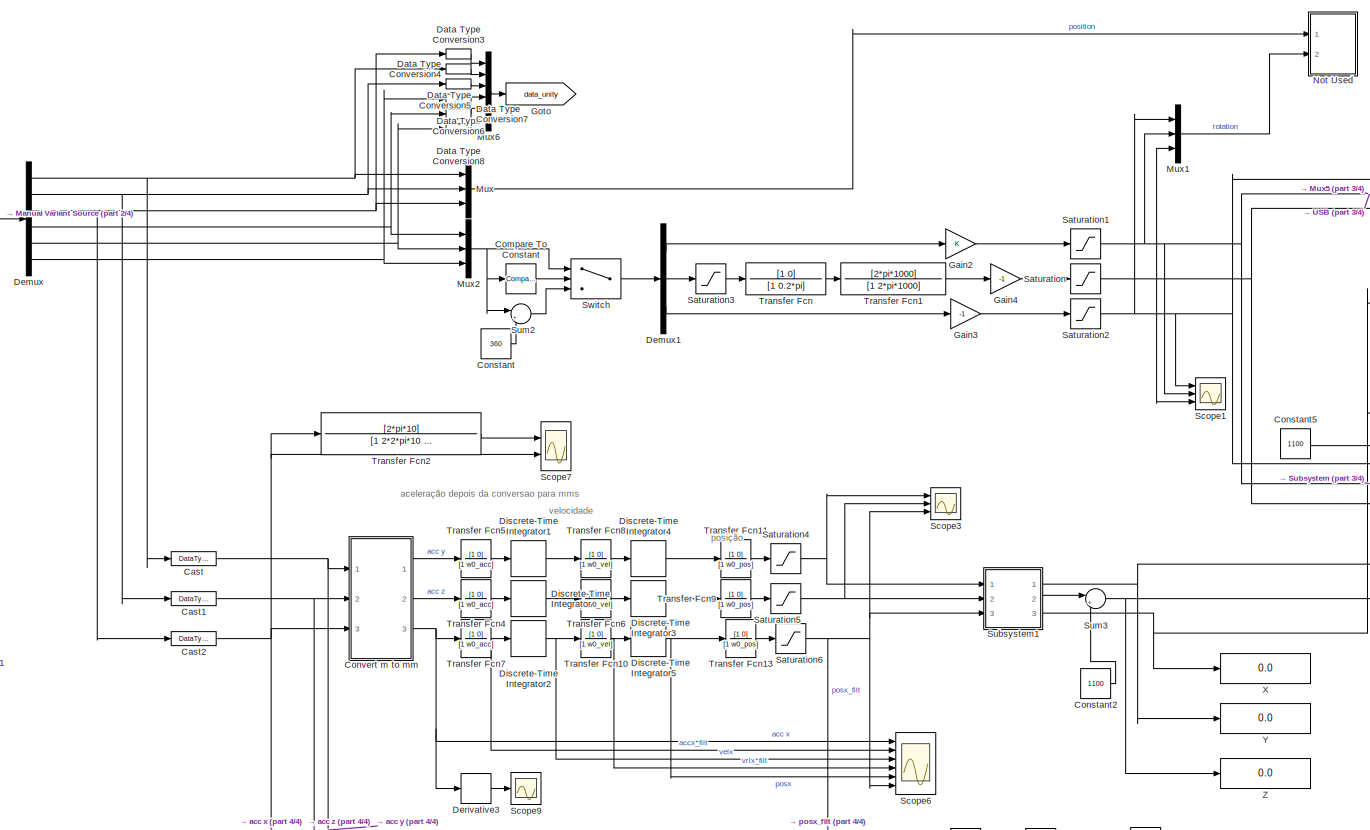
[diagram: root canvas - part 1/4, top center region]
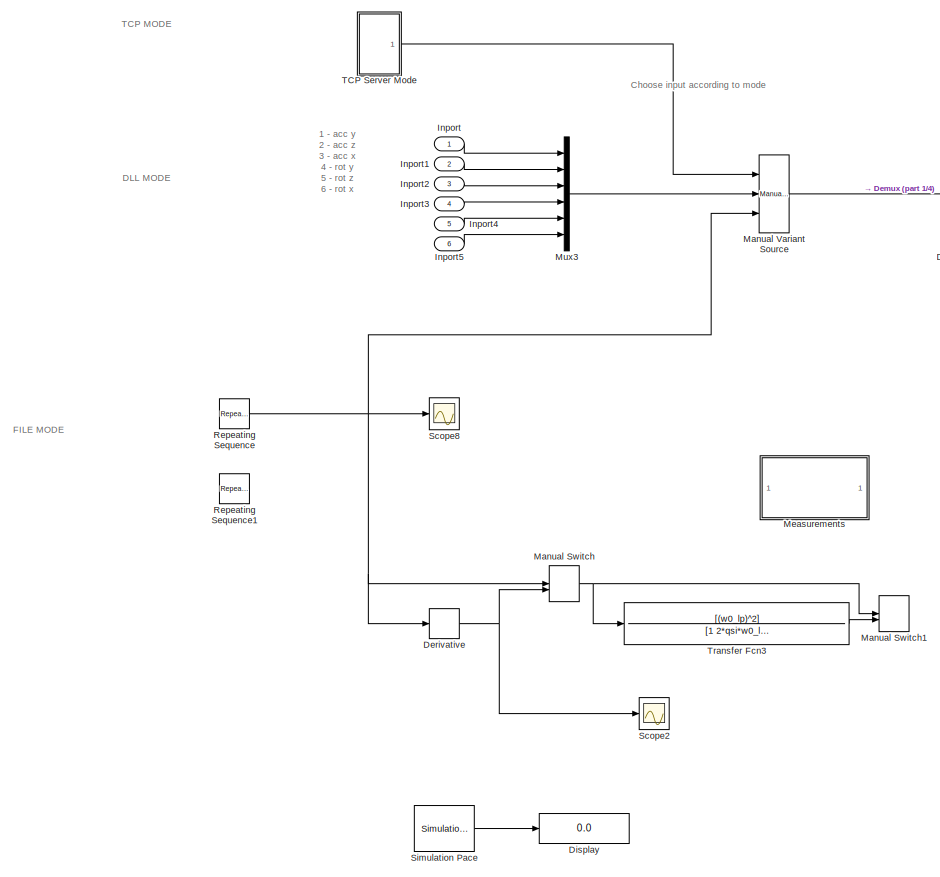
[diagram: root canvas - part 2/4, middle left region]
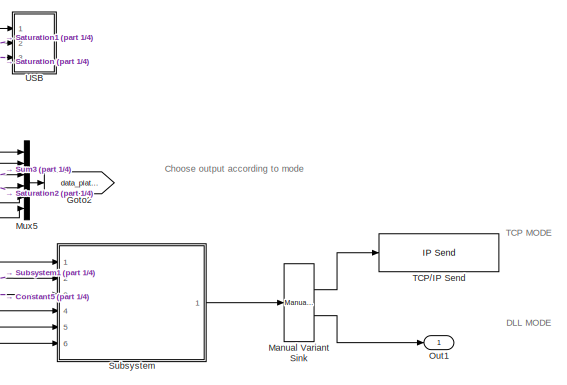
[diagram: root canvas - part 3/4, top right region]
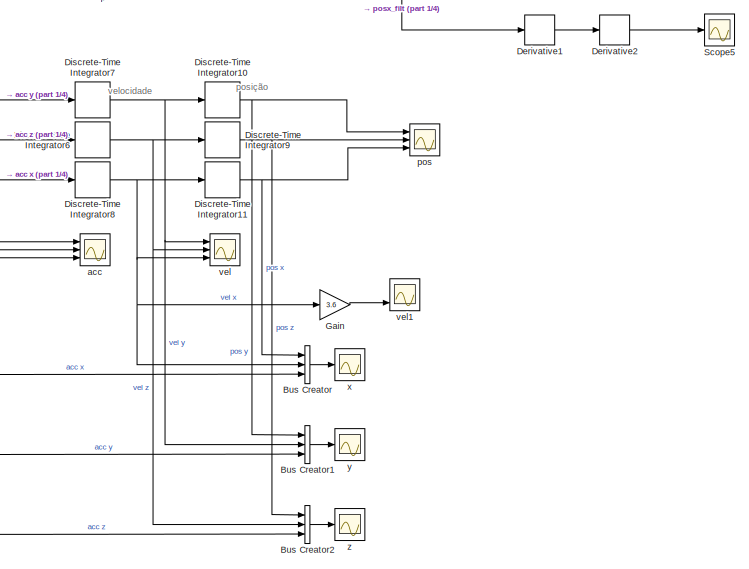
[diagram: root canvas - part 4/4, bottom center region]
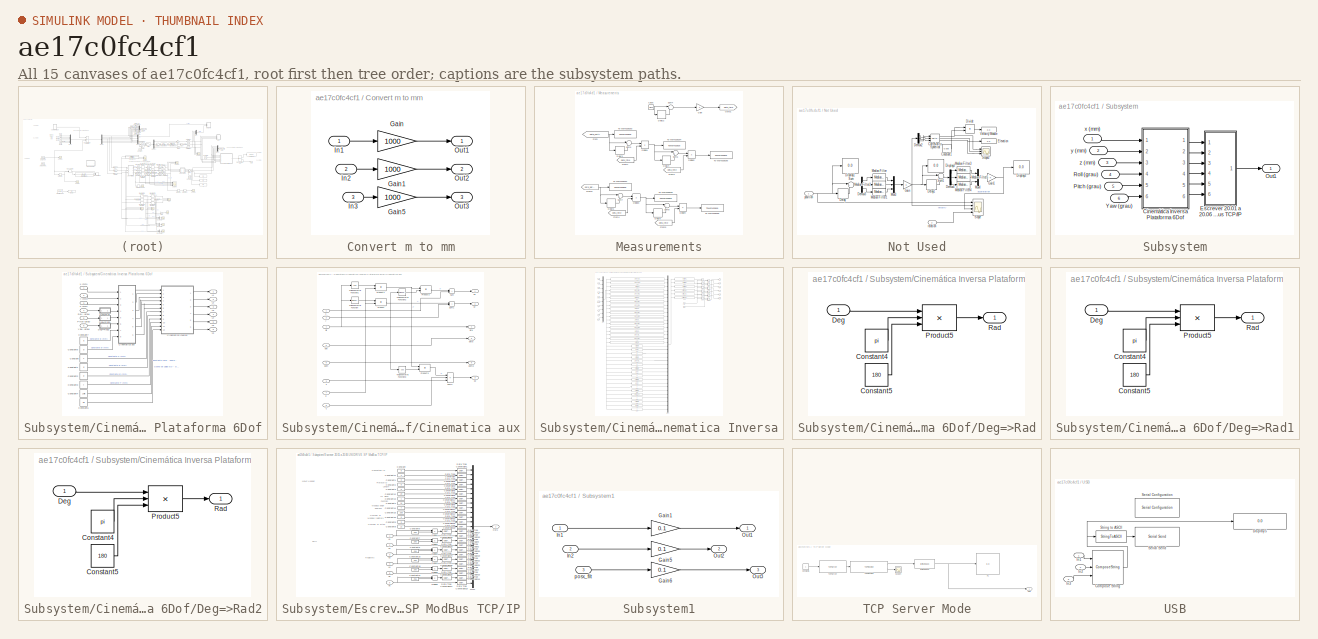
[diagram: thumbnail index - all 15 canvases of the model, root first then tree order]
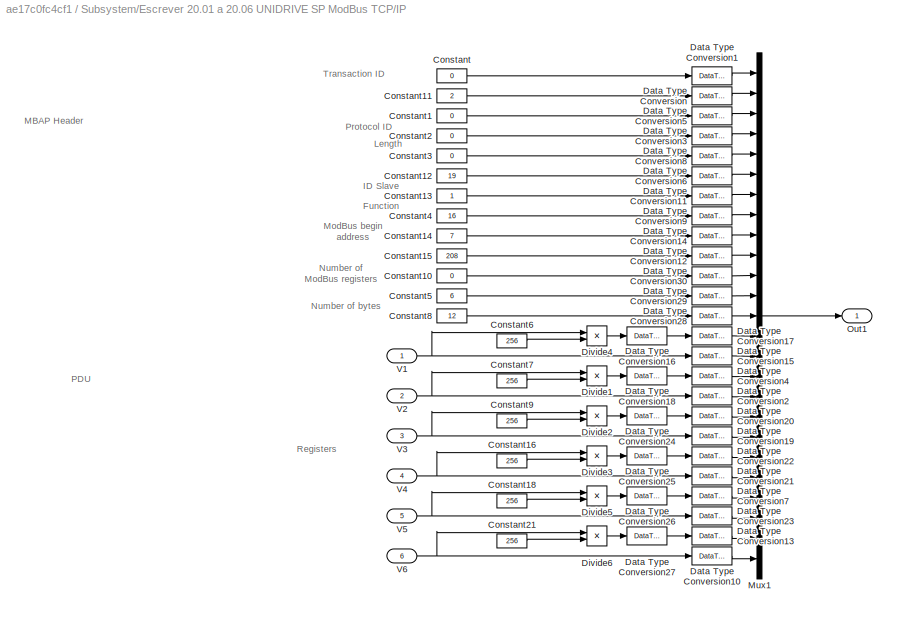
MODEL slx_ae17c0fc4cf1
KIND model
CONFIG AbsTol = auto
CONFIG EnableMultiTasking = off
CONFIG FixedStep = 0.02
CONFIG InitFcn = run('./init_simulink.m');
CONFIG MaxStep = auto
CONFIG MinStep = auto
CONFIG RelTol = 1e-3
CONFIG SampleTimeConstraint = Unconstrained
CONFIG SolverName = FixedStepAuto
CONFIG StartTime = 0.0
CONFIG StopTime = inf
BLOCK [BusCreator] Bus Creator
  DisplayOption = bar
  InheritFromInputs = on
  Inputs = 3
  Ports = [3, 1]
BLOCK [BusCreator] Bus Creator1
  DisplayOption = bar
  InheritFromInputs = on
  Inputs = 3
  Ports = [3, 1]
BLOCK [BusCreator] Bus Creator2
  DisplayOption = bar
  InheritFromInputs = on
  Inputs = 3
  Ports = [3, 1]
BLOCK [DataTypeConversion] Cast
  RndMeth = Floor
  SaturateOnIntegerOverflow = off
BLOCK [DataTypeConversion] Cast1
  RndMeth = Floor
  SaturateOnIntegerOverflow = off
BLOCK [DataTypeConversion] Cast2
  RndMeth = Floor
  SaturateOnIntegerOverflow = off
BLOCK [Reference] Compare To Constant  REF=simulink/Logic and Bit
Operations/Compare
To Constant
  Ports = [1, 1]
  SourceBlock = simulink/Logic and Bit\nOperations/Compare\nTo Constant
  SourceProductBaseCode = SL
  SourceType = Compare To Constant
BLOCK [Constant] Constant
  Value = 360
BLOCK [Constant] Constant2
  Value = 1100
BLOCK [Constant] Constant5
  Value = 1100
BLOCK [SubSystem] Convert m to mm
  Ports = [3, 3]
  RequestExecContextInheritance = off
BLOCK [Gain] Convert m to mm/Gain
  Gain = 1000
BLOCK [Gain] Convert m to mm/Gain1
  Gain = 1000
BLOCK [Gain] Convert m to mm/Gain5
  Gain = 1000
BLOCK [Inport] Convert m to mm/In1
BLOCK [Inport] Convert m to mm/In2
  Port = 2
BLOCK [Inport] Convert m to mm/In3
  Port = 3
BLOCK [Outport] Convert m to mm/Out1
BLOCK [Outport] Convert m to mm/Out2
  Port = 2
BLOCK [Outport] Convert m to mm/Out3
  Port = 3
BLOCK [DataTypeConversion] Data Type Conversion3
  RndMeth = Floor
  SaturateOnIntegerOverflow = off
BLOCK [DataTypeConversion] Data Type Conversion4
  RndMeth = Floor
  SaturateOnIntegerOverflow = off
BLOCK [DataTypeConversion] Data Type Conversion5
  RndMeth = Floor
  SaturateOnIntegerOverflow = off
BLOCK [DataTypeConversion] Data Type Conversion6
  RndMeth = Floor
  SaturateOnIntegerOverflow = off
BLOCK [DataTypeConversion] Data Type Conversion7
  RndMeth = Floor
  SaturateOnIntegerOverflow = off
BLOCK [DataTypeConversion] Data Type Conversion8
  RndMeth = Floor
  SaturateOnIntegerOverflow = off
BLOCK [Demux] Demux
  Outputs = 6
  Ports = [1, 6]
BLOCK [Demux] Demux1
  Outputs = 3
  Ports = [1, 3]
BLOCK [Derivative] Derivative
  Commented = on
BLOCK [Derivative] Derivative1
BLOCK [Derivative] Derivative2
BLOCK [Derivative] Derivative3
BLOCK [DiscreteIntegrator] Discrete-Time Integrator
  ICPrevOutput = DiscIntNeverNeededParam
  ICPrevScaledInput = DiscIntNeverNeededParam
  InitialConditionSetting = Auto
  LowerSaturationLimit = -150
  Ports = [1, 1]
  SampleTime = -1
  UpperSaturationLimit = 150
BLOCK [DiscreteIntegrator] Discrete-Time Integrator1
  ICPrevOutput = DiscIntNeverNeededParam
  ICPrevScaledInput = DiscIntNeverNeededParam
  InitialConditionSetting = Auto
  LowerSaturationLimit = -1000
  Ports = [1, 1]
  SampleTime = -1
  UpperSaturationLimit = 1000
BLOCK [DiscreteIntegrator] Discrete-Time Integrator10
  ICPrevOutput = DiscIntNeverNeededParam
  ICPrevScaledInput = DiscIntNeverNeededParam
  InitialConditionSetting = Auto
  LowerSaturationLimit = -150
  Ports = [1, 1]
  SampleTime = -1
  UpperSaturationLimit = 150
BLOCK [DiscreteIntegrator] Discrete-Time Integrator11
  ICPrevOutput = DiscIntNeverNeededParam
  ICPrevScaledInput = DiscIntNeverNeededParam
  InitialConditionSetting = Auto
  LowerSaturationLimit = -150
  Ports = [1, 1]
  SampleTime = -1
  UpperSaturationLimit = 150
BLOCK [DiscreteIntegrator] Discrete-Time Integrator2
  ICPrevOutput = DiscIntNeverNeededParam
  ICPrevScaledInput = DiscIntNeverNeededParam
  InitialConditionSetting = Auto
  LowerSaturationLimit = -150
  Ports = [1, 1]
  SampleTime = -1
  UpperSaturationLimit = 150
BLOCK [DiscreteIntegrator] Discrete-Time Integrator3
  ICPrevOutput = DiscIntNeverNeededParam
  ICPrevScaledInput = DiscIntNeverNeededParam
  InitialConditionSetting = Auto
  LowerSaturationLimit = -150
  Ports = [1, 1]
  SampleTime = -1
  UpperSaturationLimit = 150
BLOCK [DiscreteIntegrator] Discrete-Time Integrator4
  ICPrevOutput = DiscIntNeverNeededParam
  ICPrevScaledInput = DiscIntNeverNeededParam
  InitialConditionSetting = Auto
  LowerSaturationLimit = -150
  Ports = [1, 1]
  SampleTime = -1
  UpperSaturationLimit = 150
BLOCK [DiscreteIntegrator] Discrete-Time Integrator5
  ICPrevOutput = DiscIntNeverNeededParam
  ICPrevScaledInput = DiscIntNeverNeededParam
  InitialConditionSetting = Auto
  LowerSaturationLimit = -150
  Ports = [1, 1]
  SampleTime = -1
  UpperSaturationLimit = 150
BLOCK [DiscreteIntegrator] Discrete-Time Integrator6
  ICPrevOutput = DiscIntNeverNeededParam
  ICPrevScaledInput = DiscIntNeverNeededParam
  InitialConditionSetting = Auto
  LowerSaturationLimit = -150
  Ports = [1, 1]
  SampleTime = -1
  UpperSaturationLimit = 150
BLOCK [DiscreteIntegrator] Discrete-Time Integrator7
  ICPrevOutput = DiscIntNeverNeededParam
  ICPrevScaledInput = DiscIntNeverNeededParam
  InitialConditionSetting = Auto
  LowerSaturationLimit = -150
  Ports = [1, 1]
  SampleTime = -1
  UpperSaturationLimit = 150
BLOCK [DiscreteIntegrator] Discrete-Time Integrator8
  ICPrevOutput = DiscIntNeverNeededParam
  ICPrevScaledInput = DiscIntNeverNeededParam
  InitialConditionSetting = Auto
  LowerSaturationLimit = -150
  Ports = [1, 1]
  SampleTime = -1
  UpperSaturationLimit = 150
BLOCK [DiscreteIntegrator] Discrete-Time Integrator9
  ICPrevOutput = DiscIntNeverNeededParam
  ICPrevScaledInput = DiscIntNeverNeededParam
  InitialConditionSetting = Auto
  LowerSaturationLimit = -150
  Ports = [1, 1]
  SampleTime = -1
  UpperSaturationLimit = 150
BLOCK [Display] Display
  Commented = on
  Decimation = 1
  Ports = [1]
BLOCK [Gain] Gain
  Gain = 3.6
BLOCK [Gain] Gain2
BLOCK [Gain] Gain3
  Gain = -1
BLOCK [Gain] Gain4
  Gain = -1
BLOCK [Goto] Goto
  GotoTag = data_unity
  TagVisibility = global
BLOCK [Goto] Goto2
  GotoTag = data_platform
  TagVisibility = global
BLOCK [Inport] Inport
  OutDataTypeStr = double
BLOCK [Inport] Inport1
  OutDataTypeStr = double
  Port = 2
BLOCK [Inport] Inport2
  OutDataTypeStr = double
  Port = 3
BLOCK [Inport] Inport3
  OutDataTypeStr = double
  Port = 4
BLOCK [Inport] Inport4
  OutDataTypeStr = double
  Port = 5
BLOCK [Inport] Inport5
  OutDataTypeStr = double
  Port = 6
BLOCK [ManualSwitch] Manual Switch
  Commented = on
BLOCK [ManualSwitch] Manual Switch1
  Commented = on
  CurrentSetting = 0
BLOCK [Reference] Manual Variant Sink  REF=simulink/Signal
Routing/Manual
Variant Sink
  Ports = [1, 2]
  SourceBlock = simulink/Signal\nRouting/Manual\nVariant Sink
  SourceProductBaseCode = SL
  SourceType = ManualVariantSink
BLOCK [Reference] Manual Variant Source  REF=simulink/Signal
Routing/Manual
Variant Source
  Ports = [3, 1]
  SourceBlock = simulink/Signal\nRouting/Manual\nVariant Source
  SourceProductBaseCode = SL
  SourceType = ManualVariantSource
BLOCK [SubSystem] Measurements
  Commented = on
  Ports = []
  RequestExecContextInheritance = off
BLOCK [Clock] Measurements/Clock
  Decimation = 1
BLOCK [Delay] Measurements/Delay2
  DelayLength = 1
  InputPortMap = u0
  Ports = [1, 1]
BLOCK [Delay] Measurements/Delay3
  DelayLength = 1
  InputPortMap = u0
  Ports = [1, 1]
BLOCK [Delay] Measurements/Delay4
  DelayLength = 1
  InputPortMap = u0
  Ports = [1, 1]
BLOCK [Delay] Measurements/Delay5
  DelayLength = 1
  InputPortMap = u0
  Ports = [1, 1]
BLOCK [Delay] Measurements/Delay6
  DelayLength = 1
  InputPortMap = u0
  Ports = [1, 1]
BLOCK [Product] Measurements/Divide1
  Inputs = */
  Ports = [2, 1]
BLOCK [Product] Measurements/Divide2
  Inputs = */
  Ports = [2, 1]
BLOCK [Product] Measurements/Divide3
  Inputs = */
  Ports = [2, 1]
BLOCK [Product] Measurements/Divide4
  Inputs = */
  Ports = [2, 1]
BLOCK [From] Measurements/From
  GotoTag = data_unity
  TagVisibility = global
BLOCK [From] Measurements/From1
  GotoTag = delta_time
BLOCK [From] Measurements/From2
  GotoTag = delta_time
BLOCK [From] Measurements/From4
  GotoTag = delta_time
BLOCK [From] Measurements/From5
  GotoTag = delta_time
BLOCK [From] Measurements/From6
  GotoTag = data_platform
  TagVisibility = global
BLOCK [Gain] Measurements/Gain
  Gain = 2
BLOCK [Goto] Measurements/Goto1
  GotoTag = delta_time
BLOCK [Sum] Measurements/Sum4
  Inputs = |+-
  Ports = [2, 1]
BLOCK [Sum] Measurements/Sum5
  Inputs = |+-
  Ports = [2, 1]
BLOCK [Sum] Measurements/Sum6
  Inputs = |+-
  Ports = [2, 1]
BLOCK [Sum] Measurements/Sum7
  Inputs = |+-
  Ports = [2, 1]
BLOCK [Sum] Measurements/Sum8
  Inputs = |+-
  Ports = [2, 1]
BLOCK [ToWorkspace] Measurements/To Workspace1
  FixptAsFi = on
  MaxDataPoints = inf
  Ports = [1]
  SampleTime = -1
  SaveFormat = Structure With Time
  VariableName = pos_plataforma
BLOCK [ToWorkspace] Measurements/To Workspace2
  FixptAsFi = on
  MaxDataPoints = inf
  Ports = [1]
  SampleTime = -1
  SaveFormat = Structure With Time
  VariableName = vel_plataforma
BLOCK [ToWorkspace] Measurements/To Workspace3
  FixptAsFi = on
  MaxDataPoints = inf
  Ports = [1]
  SampleTime = -1
  SaveFormat = Structure With Time
  VariableName = pos_unity
BLOCK [ToWorkspace] Measurements/To Workspace4
  FixptAsFi = on
  MaxDataPoints = inf
  Ports = [1]
  SampleTime = -1
  SaveFormat = Structure With Time
  VariableName = vel_unity
BLOCK [ToWorkspace] Measurements/To Workspace5
  FixptAsFi = on
  MaxDataPoints = inf
  Ports = [1]
  SampleTime = -1
  SaveFormat = Structure With Time
  VariableName = acc_unity
BLOCK [ToWorkspace] Measurements/To Workspace6
  FixptAsFi = on
  MaxDataPoints = inf
  Ports = [1]
  SampleTime = -1
  SaveFormat = Structure With Time
  VariableName = acc_plataforma
BLOCK [Mux] Mux
  DisplayOption = bar
  Inputs = 3
  Ports = [3, 1]
BLOCK [Mux] Mux1
  Commented = on
  DisplayOption = bar
  Inputs = 3
  Ports = [3, 1]
BLOCK [Mux] Mux2
  DisplayOption = bar
  Inputs = 3
  Ports = [3, 1]
BLOCK [Mux] Mux3
  DisplayOption = bar
  Inputs = 6
  Ports = [6, 1]
BLOCK [Mux] Mux5
  DisplayOption = bar
  Inputs = 6
  Ports = [6, 1]
BLOCK [Mux] Mux6
  DisplayOption = bar
  Inputs = 6
  Ports = [6, 1]
BLOCK [SubSystem] Not Used
  Commented = on
  Ports = [2]
  RequestExecContextInheritance = off
BLOCK [Reference] Not Used/Cartesian to Spherical  REF=simulink_extras/Transformations/Cartesian to
Spherical
  Commented = on
  Ports = [3, 3]
  SourceBlock = simulink_extras/Transformations/Cartesian to\nSpherical
  SourceProductBaseCode = SL
  SourceType = Cart2Sph
BLOCK [Constant] Not Used/Constant1
  Commented = on
  Value = 0.005
BLOCK [Delay] Not Used/Delay
  Commented = on
  DelayLength = 1
  InputPortMap = u0
  Ports = [1, 1]
BLOCK [Delay] Not Used/Delay1
  Commented = on
  DelayLength = 1
  InputPortMap = u0
  Ports = [1, 1]
BLOCK [Demux] Not Used/Demux2
  Commented = on
  Outputs = 3
  Ports = [1, 3]
BLOCK [Demux] Not Used/Demux3
  Commented = on
  Outputs = 3
  Ports = [1, 3]
BLOCK [Demux] Not Used/Demux4
  Commented = on
  Outputs = 3
  Ports = [1, 3]
BLOCK [Display] Not Used/Display1
  Commented = on
  Decimation = 1
  Ports = [1]
BLOCK [Display] Not Used/Display2
  Commented = on
  Decimation = 1
  Ports = [1]
BLOCK [Display] Not Used/Display3
  Commented = on
  Decimation = 1
  Ports = [1]
BLOCK [Product] Not Used/Divide
  Commented = on
  Inputs = */
  Ports = [2, 1]
BLOCK [Display] Not Used/Elevation
  Commented = on
  Decimation = 1
  Ports = [1]
BLOCK [Gain] Not Used/Gain
  Commented = on
BLOCK [Gain] Not Used/Gain1
  Commented = on
BLOCK [Reference] Not Used/Median Filter  REF=dspstat3/Median
Filter
  Commented = on
  Ports = [1, 1]
  SourceBlock = dspstat3/Median\nFilter
  SourceProductName = DSP System Toolbox
  SourceType = dsp.MedianFilter
BLOCK [Reference] Not Used/Median Filter1  REF=dspstat3/Median
Filter
  Commented = on
  Ports = [1, 1]
  SourceBlock = dspstat3/Median\nFilter
  SourceProductName = DSP System Toolbox
  SourceType = dsp.MedianFilter
BLOCK [Reference] Not Used/Median Filter2  REF=dspstat3/Median
Filter
  Commented = on
  Ports = [1, 1]
  SourceBlock = dspstat3/Median\nFilter
  SourceProductName = DSP System Toolbox
  SourceType = dsp.MedianFilter
BLOCK [Reference] Not Used/Median Filter3  REF=dspstat3/Median
Filter
  Commented = on
  Ports = [1, 1]
  SourceBlock = dspstat3/Median\nFilter
  SourceProductName = DSP System Toolbox
  SourceType = dsp.MedianFilter
BLOCK [Reference] Not Used/Median Filter4  REF=dspstat3/Median
Filter
  Commented = on
  Ports = [1, 1]
  SourceBlock = dspstat3/Median\nFilter
  SourceProductName = DSP System Toolbox
  SourceType = dsp.MedianFilter
BLOCK [Reference] Not Used/Median Filter5  REF=dspstat3/Median
Filter
  Commented = on
  Ports = [1, 1]
  SourceBlock = dspstat3/Median\nFilter
  SourceProductName = DSP System Toolbox
  SourceType = dsp.MedianFilter
BLOCK [Mux] Not Used/Mux3
  Commented = on
  DisplayOption = bar
  Inputs = 3
  Ports = [3, 1]
BLOCK [Mux] Not Used/Mux4
  Commented = on
  DisplayOption = bar
  Inputs = 3
  Ports = [3, 1]
BLOCK [Scope] Not Used/Scope
  Commented = on
  Floating = off
  NumInputPorts = 4
  Ports = [4]
  ScopeSpecificationString = Simulink.scopes.TimeScopeBlockCfg('CurrentConfiguration', extmgr.ConfigurationSet(extmgr.Configuration('Core','General UI',true),extmgr.Configuration('Core','Source UI',true),extmgr.Configuration('Sources','WiredSimulink',true),extmgr.Configuration('Visuals','Time Domain',true,'SerializedDisplays',{struct('MinYLimReal','-214.76216','MaxYLimReal','399.53558','YLabelReal','','MinYLimMag',' 0.00000',...<+3865ch>
BLOCK [Scope] Not Used/Scope2
  Commented = on
  Floating = off
  NumInputPorts = 3
  Ports = [3]
  ScopeSpecificationString = Simulink.scopes.TimeScopeBlockCfg('CurrentConfiguration', extmgr.ConfigurationSet(extmgr.Configuration('Core','General UI',true),extmgr.Configuration('Core','Source UI',true),extmgr.Configuration('Sources','WiredSimulink',true,'DataLoggingVariableName','ScopeData2'),extmgr.Configuration('Visuals','Time Domain',true,'SerializedDisplays',{struct('MinYLimReal','-1.80027','MaxYLimReal','1.70746','YLab...<+2797ch>
BLOCK [Sum] Not Used/Sum
  Commented = on
  Inputs = |+-
  Ports = [2, 1]
BLOCK [Sum] Not Used/Sum1
  Commented = on
  Inputs = |+-
  Ports = [2, 1]
BLOCK [Display] Not Used/Velocity Module
  Commented = on
  Decimation = 1
  Ports = [1]
BLOCK [Inport] Not Used/position
BLOCK [Inport] Not Used/rotation
  Port = 2
BLOCK [Outport] Out1
BLOCK [Reference] Repeating Sequence  REF=simulink/Sources/Repeating
Sequence
  Commented = on
  Ports = [0, 1]
  SourceBlock = simulink/Sources/Repeating\nSequence
  SourceProductBaseCode = SL
  SourceType = Repeating table
BLOCK [Reference] Repeating Sequence1  REF=simulink/Sources/Repeating
Sequence
  Commented = on
  Ports = [0, 1]
  SourceBlock = simulink/Sources/Repeating\nSequence
  SourceProductBaseCode = SL
  SourceType = Repeating table
BLOCK [Saturate] Saturation
  LowerLimit = -15
  UpperLimit = 15
BLOCK [Saturate] Saturation1
  LowerLimit = -15
  UpperLimit = 15
BLOCK [Saturate] Saturation2
  LowerLimit = -15
  UpperLimit = 15
BLOCK [Saturate] Saturation3
  LowerLimit = -15
  UpperLimit = 15
BLOCK [Saturate] Saturation4
  LowerLimit = -250
  UpperLimit = 250
BLOCK [Saturate] Saturation5
  LowerLimit = -250
  UpperLimit = 250
BLOCK [Saturate] Saturation6
  LowerLimit = -250
  UpperLimit = 250
BLOCK [Scope] Scope1
  Floating = off
  NumInputPorts = 3
  Ports = [3]
  ScopeSpecificationString = Simulink.scopes.TimeScopeBlockCfg('CurrentConfiguration', extmgr.ConfigurationSet(extmgr.Configuration('Core','General UI',true),extmgr.Configuration('Core','Source UI',true),extmgr.Configuration('Sources','WiredSimulink',true,'DataLoggingVariableName','ScopeData1'),extmgr.Configuration('Visuals','Time Domain',true,'SerializedDisplays',{struct('MinYLimReal','-0.0000006','MaxYLimReal','0.0000006','...<+2692ch>
BLOCK [Scope] Scope2
  Commented = on
  Floating = off
  NumInputPorts = 1
  Ports = [1]
  ScopeSpecificationString = Simulink.scopes.TimeScopeBlockCfg('CurrentConfiguration', extmgr.ConfigurationSet(extmgr.Configuration('Core','General UI',true),extmgr.Configuration('Core','Source UI',true),extmgr.Configuration('Sources','WiredSimulink',true,'DataLoggingVariableName','ScopeData3'),extmgr.Configuration('Visuals','Time Domain',true,'SerializedDisplays',{struct('MinYLimReal','-0.0375','MaxYLimReal','0.3375','YLabel...<+1392ch>
BLOCK [Scope] Scope3
  Commented = on
  Floating = off
  NumInputPorts = 3
  Ports = [3]
  ScopeSpecificationString = Simulink.scopes.TimeScopeBlockCfg('CurrentConfiguration', extmgr.ConfigurationSet(extmgr.Configuration('Core','General UI',true),extmgr.Configuration('Core','Source UI',true),extmgr.Configuration('Sources','WiredSimulink',true,'DataLoggingVariableName','ScopeData2'),extmgr.Configuration('Visuals','Time Domain',true,'SerializedDisplays',{struct('MinYLimReal','-1.00000','MaxYLimReal','1.00000','YLab...<+2771ch>
BLOCK [Scope] Scope5
  Floating = off
  NumInputPorts = 1
  Ports = [1]
  ScopeSpecificationString = Simulink.scopes.TimeScopeBlockCfg('CurrentConfiguration', extmgr.ConfigurationSet(extmgr.Configuration('Core','General UI',true),extmgr.Configuration('Core','Source UI',true),extmgr.Configuration('Sources','WiredSimulink',true,'DataLoggingVariableName','ScopeData1'),extmgr.Configuration('Visuals','Time Domain',true,'SerializedDisplays',{struct('MinYLimReal','-1130.4375','MaxYLimReal','1332.84555',...<+1535ch>
BLOCK [Scope] Scope6
  Floating = off
  NumInputPorts = 6
  Ports = [6]
  ScopeSpecificationString = Simulink.scopes.TimeScopeBlockCfg('CurrentConfiguration', extmgr.ConfigurationSet(extmgr.Configuration('Core','General UI',true,'FigureColor',[0.8 0.8 0.8]),extmgr.Configuration('Core','Source UI',true),extmgr.Configuration('Sources','WiredSimulink',true,'DataLoggingVariableName','ScopeData3'),extmgr.Configuration('Visuals','Time Domain',true,'TimeAxisLabels','All','SerializedDisplays',{struct('Mi...<+5829ch>
BLOCK [Scope] Scope7
  Floating = off
  NumInputPorts = 2
  Ports = [2]
  ScopeSpecificationString = Simulink.scopes.TimeScopeBlockCfg('CurrentConfiguration', extmgr.ConfigurationSet(extmgr.Configuration('Core','General UI',true),extmgr.Configuration('Core','Source UI',true),extmgr.Configuration('Sources','WiredSimulink',true,'DataLoggingVariableName','ScopeData1'),extmgr.Configuration('Visuals','Time Domain',true,'SerializedDisplays',{struct('MinYLimReal','-6.45834','MaxYLimReal','3.36111','YLab...<+2556ch>
BLOCK [Scope] Scope8
  Commented = on
  Floating = off
  NumInputPorts = 1
  Ports = [1]
  ScopeSpecificationString = Simulink.scopes.TimeScopeBlockCfg('CurrentConfiguration', extmgr.ConfigurationSet(extmgr.Configuration('Core','General UI',true),extmgr.Configuration('Core','Source UI',true),extmgr.Configuration('Sources','WiredSimulink',true,'DataLoggingVariableName','ScopeData2'),extmgr.Configuration('Visuals','Time Domain',true,'SerializedDisplays',{struct('MinYLimReal','-0.26625','MaxYLimReal','2.39625','YLab...<+1436ch>
BLOCK [Scope] Scope9
  Floating = off
  NumInputPorts = 1
  Ports = [1]
  ScopeSpecificationString = Simulink.scopes.TimeScopeBlockCfg('CurrentConfiguration', extmgr.ConfigurationSet(extmgr.Configuration('Core','General UI',true),extmgr.Configuration('Core','Source UI',true),extmgr.Configuration('Sources','WiredSimulink',true,'DataLoggingVariableName','ScopeData2'),extmgr.Configuration('Visuals','Time Domain',true,'SerializedDisplays',{struct('MinYLimReal','-14679.17468','MaxYLimReal','7695.30971...<+1430ch>
BLOCK [Reference] Simulation Pace  REF=aerolibanimutils/Simulation Pace
  AttributesFormatString = %<SleepMode>\n%<SimulationPace> sec/sec
  Commented = on
  Ports = [0, 1]
  SourceBlock = aerolibanimutils/Simulation Pace
  SourceProductBaseCode = AE
  SourceType = Simulation Pace
BLOCK [SubSystem] Subsystem
  Ports = [6, 1]
  RequestExecContextInheritance = off
BLOCK [SubSystem] Subsystem/Cinemática Inversa Plataforma 6Dof
  Ports = [6, 6]
  RequestExecContextInheritance = off
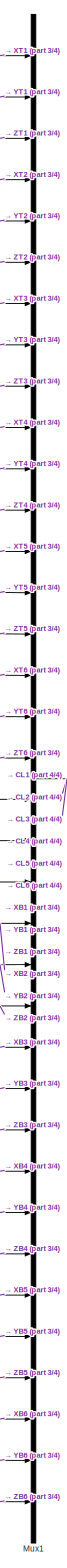
[diagram: Subsystem/Cinemática Inversa Plataforma 6Dof/Cinematica Inversa - part 1/4, center side, full height]
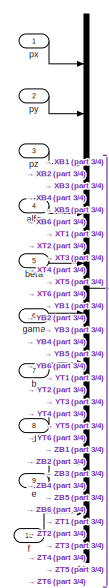
[diagram: Subsystem/Cinemática Inversa Plataforma 6Dof/Cinematica Inversa - part 2/4, top left region]
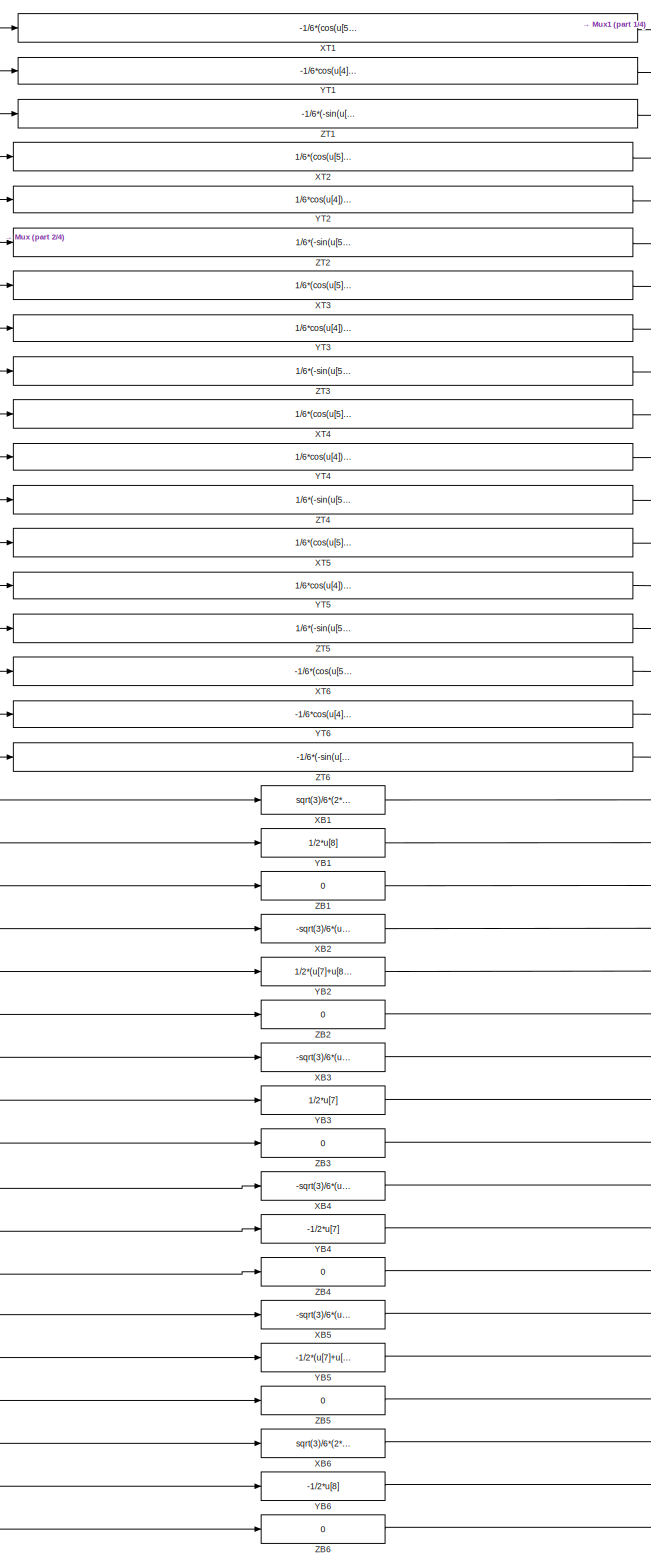
[diagram: Subsystem/Cinemática Inversa Plataforma 6Dof/Cinematica Inversa - part 3/4, left side, full height]
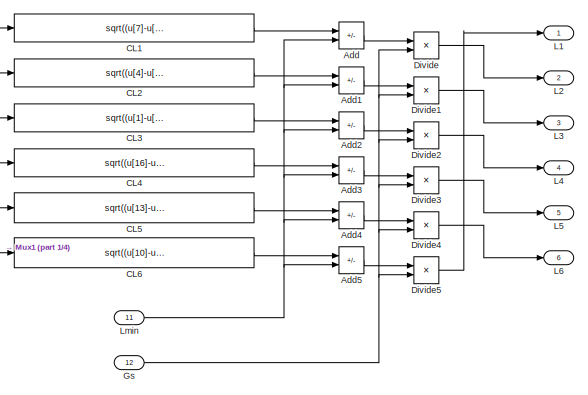
[diagram: Subsystem/Cinemática Inversa Plataforma 6Dof/Cinematica Inversa - part 4/4, top right region]
BLOCK [SubSystem] Subsystem/Cinemática Inversa Plataforma 6Dof/Cinematica Inversa
  Ports = [12, 6]
  RequestExecContextInheritance = off
BLOCK [Sum] Subsystem/Cinemática Inversa Plataforma 6Dof/Cinematica Inversa/Add
  IconShape = rectangular
  Inputs = +-
  Ports = [2, 1]
BLOCK [Sum] Subsystem/Cinemática Inversa Plataforma 6Dof/Cinematica Inversa/Add1
  IconShape = rectangular
  Inputs = +-
  Ports = [2, 1]
BLOCK [Sum] Subsystem/Cinemática Inversa Plataforma 6Dof/Cinematica Inversa/Add2
  IconShape = rectangular
  Inputs = +-
  Ports = [2, 1]
BLOCK [Sum] Subsystem/Cinemática Inversa Plataforma 6Dof/Cinematica Inversa/Add3
  IconShape = rectangular
  Inputs = +-
  Ports = [2, 1]
BLOCK [Sum] Subsystem/Cinemática Inversa Plataforma 6Dof/Cinematica Inversa/Add4
  IconShape = rectangular
  Inputs = +-
  Ports = [2, 1]
BLOCK [Sum] Subsystem/Cinemática Inversa Plataforma 6Dof/Cinematica Inversa/Add5
  IconShape = rectangular
  Inputs = +-
  Ports = [2, 1]
BLOCK [Fcn] Subsystem/Cinemática Inversa Plataforma 6Dof/Cinematica Inversa/CL1
  Expr = sqrt((u[7]-u[19])^2+(u[8]-u[20])^2+(u[9]-u[21])^2)
BLOCK [Fcn] Subsystem/Cinemática Inversa Plataforma 6Dof/Cinematica Inversa/CL2
  Expr = sqrt((u[4]-u[22])^2+(u[5]-u[23])^2+(u[6]-u[24])^2)
BLOCK [Fcn] Subsystem/Cinemática Inversa Plataforma 6Dof/Cinematica Inversa/CL3
  Expr = sqrt((u[1]-u[25])^2+(u[2]-u[26])^2+(u[3]-u[27])^2)
BLOCK [Fcn] Subsystem/Cinemática Inversa Plataforma 6Dof/Cinematica Inversa/CL4
  Expr = sqrt((u[16]-u[28])^2+(u[17]-u[29])^2+(u[18]-u[30])^2)
BLOCK [Fcn] Subsystem/Cinemática Inversa Plataforma 6Dof/Cinematica Inversa/CL5
  Expr = sqrt((u[13]-u[31])^2+(u[14]-u[32])^2+(u[15]-u[33])^2)
BLOCK [Fcn] Subsystem/Cinemática Inversa Plataforma 6Dof/Cinematica Inversa/CL6
  Expr = sqrt((u[10]-u[34])^2+(u[11]-u[35])^2+(u[12]-u[36])^2)
BLOCK [Product] Subsystem/Cinemática Inversa Plataforma 6Dof/Cinematica Inversa/Divide
  Inputs = **
  Ports = [2, 1]
BLOCK [Product] Subsystem/Cinemática Inversa Plataforma 6Dof/Cinematica Inversa/Divide1
  Inputs = **
  Ports = [2, 1]
BLOCK [Product] Subsystem/Cinemática Inversa Plataforma 6Dof/Cinematica Inversa/Divide2
  Inputs = **
  Ports = [2, 1]
BLOCK [Product] Subsystem/Cinemática Inversa Plataforma 6Dof/Cinematica Inversa/Divide3
  Inputs = **
  Ports = [2, 1]
BLOCK [Product] Subsystem/Cinemática Inversa Plataforma 6Dof/Cinematica Inversa/Divide4
  Inputs = **
  Ports = [2, 1]
BLOCK [Product] Subsystem/Cinemática Inversa Plataforma 6Dof/Cinematica Inversa/Divide5
  Inputs = **
  Ports = [2, 1]
BLOCK [Inport] Subsystem/Cinemática Inversa Plataforma 6Dof/Cinematica Inversa/Gs
  Port = 12
BLOCK [Outport] Subsystem/Cinemática Inversa Plataforma 6Dof/Cinematica Inversa/L1
BLOCK [Outport] Subsystem/Cinemática Inversa Plataforma 6Dof/Cinematica Inversa/L2
  Port = 2
BLOCK [Outport] Subsystem/Cinemática Inversa Plataforma 6Dof/Cinematica Inversa/L3
  Port = 3
BLOCK [Outport] Subsystem/Cinemática Inversa Plataforma 6Dof/Cinematica Inversa/L4
  Port = 4
BLOCK [Outport] Subsystem/Cinemática Inversa Plataforma 6Dof/Cinematica Inversa/L5
  Port = 5
BLOCK [Outport] Subsystem/Cinemática Inversa Plataforma 6Dof/Cinematica Inversa/L6
  Port = 6
BLOCK [Inport] Subsystem/Cinemática Inversa Plataforma 6Dof/Cinematica Inversa/Lmin
  Port = 11
BLOCK [Mux] Subsystem/Cinemática Inversa Plataforma 6Dof/Cinematica Inversa/Mux
  DisplayOption = bar
  Inputs = 10
  Ports = [10, 1]
BLOCK [Mux] Subsystem/Cinemática Inversa Plataforma 6Dof/Cinematica Inversa/Mux1
  DisplayOption = bar
  Inputs = 36
  Ports = [36, 1]
BLOCK [Fcn] Subsystem/Cinemática Inversa Plataforma 6Dof/Cinematica Inversa/XB1
  Expr = sqrt(3)/6*(2*u[7]+u[8])
BLOCK [Fcn] Subsystem/Cinemática Inversa Plataforma 6Dof/Cinematica Inversa/XB2
  Expr = -sqrt(3)/6*(u[7]-u[8])
BLOCK [Fcn] Subsystem/Cinemática Inversa Plataforma 6Dof/Cinematica Inversa/XB3
  Expr = -sqrt(3)/6*(u[7]+2*u[8])
BLOCK [Fcn] Subsystem/Cinemática Inversa Plataforma 6Dof/Cinematica Inversa/XB4
  Expr = -sqrt(3)/6*(u[7]+2*u[8])
BLOCK [Fcn] Subsystem/Cinemática Inversa Plataforma 6Dof/Cinematica Inversa/XB5
  Expr = -sqrt(3)/6*(u[7]-u[8])
BLOCK [Fcn] Subsystem/Cinemática Inversa Plataforma 6Dof/Cinematica Inversa/XB6
  Expr = sqrt(3)/6*(2*u[7]+u[8])
BLOCK [Fcn] Subsystem/Cinemática Inversa Plataforma 6Dof/Cinematica Inversa/XT1
  Expr = -1/6*(cos(u[5])*cos(u[6])+sin(u[4])*sin(u[5])*sin(u[6]))*sqrt(3)*(2*u[10]+u[9])+1/2*(-cos(u[5])*sin(u[6])+sin(u[4])*sin(u[5])*cos(u[6]))*u[9]+u[1]
BLOCK [Fcn] Subsystem/Cinemática Inversa Plataforma 6Dof/Cinematica Inversa/XT2
  Expr = 1/6*(cos(u[5])*cos(u[6])+sin(u[4])*sin(u[5])*sin(u[6]))*sqrt(3)*(u[10]-u[9])+(-cos(u[5])*sin(u[6])+sin(u[4])*sin(u[5])*cos(u[6]))*1/2*(u[10]+u[9])+u[1]
BLOCK [Fcn] Subsystem/Cinemática Inversa Plataforma 6Dof/Cinematica Inversa/XT3
  Expr = 1/6*(cos(u[5])*cos(u[6])+sin(u[4])*sin(u[5])*sin(u[6]))*sqrt(3)*(u[10]+2*u[9])+1/2*(-cos(u[5])*sin(u[6])+sin(u[4])*sin(u[5])*cos(u[6]))*u[10]+u[1]
BLOCK [Fcn] Subsystem/Cinemática Inversa Plataforma 6Dof/Cinematica Inversa/XT4
  Expr = 1/6*(cos(u[5])*cos(u[6])+sin(u[4])*sin(u[5])*sin(u[6]))*sqrt(3)*(u[10]+2*u[9])-1/2*(-cos(u[5])*sin(u[6])+sin(u[4])*sin(u[5])*cos(u[6]))*u[10]+u[1]
BLOCK [Fcn] Subsystem/Cinemática Inversa Plataforma 6Dof/Cinematica Inversa/XT5
  Expr = 1/6*(cos(u[5])*cos(u[6])+sin(u[4])*sin(u[5])*sin(u[6]))*sqrt(3)*(u[10]-u[9])-1/2*(-cos(u[5])*sin(u[6])+sin(u[4])*sin(u[5])*cos(u[6]))*(u[10]+u[9])+u[1]
BLOCK [Fcn] Subsystem/Cinemática Inversa Plataforma 6Dof/Cinematica Inversa/XT6
  Expr = -1/6*(cos(u[5])*cos(u[6])+sin(u[4])*sin(u[5])*sin(u[6]))*sqrt(3)*(2*u[10]+u[9])-1/2*(-cos(u[5])*sin(u[6])+sin(u[4])*sin(u[5])*cos(u[6]))*u[9]+u[1]
BLOCK [Fcn] Subsystem/Cinemática Inversa Plataforma 6Dof/Cinematica Inversa/YB1
  Expr = 1/2*u[8]
BLOCK [Fcn] Subsystem/Cinemática Inversa Plataforma 6Dof/Cinematica Inversa/YB2
  Expr = 1/2*(u[7]+u[8])
BLOCK [Fcn] Subsystem/Cinemática Inversa Plataforma 6Dof/Cinematica Inversa/YB3
  Expr = 1/2*u[7]
BLOCK [Fcn] Subsystem/Cinemática Inversa Plataforma 6Dof/Cinematica Inversa/YB4
  Expr = -1/2*u[7]
BLOCK [Fcn] Subsystem/Cinemática Inversa Plataforma 6Dof/Cinematica Inversa/YB5
  Expr = -1/2*(u[7]+u[8])
BLOCK [Fcn] Subsystem/Cinemática Inversa Plataforma 6Dof/Cinematica Inversa/YB6
  Expr = -1/2*u[8]
BLOCK [Fcn] Subsystem/Cinemática Inversa Plataforma 6Dof/Cinematica Inversa/YT1
  Expr = -1/6*cos(u[4])*sin(u[6])*sqrt(3)*(2*u[10]+u[9])+1/2*cos(u[4])*cos(u[6])*u[9]+u[2]
BLOCK [Fcn] Subsystem/Cinemática Inversa Plataforma 6Dof/Cinematica Inversa/YT2
  Expr = 1/6*cos(u[4])*sin(u[6])*sqrt(3)*(u[10]-u[9])+1/2*cos(u[4])*cos(u[6])*(u[10]+u[9])+u[2]
BLOCK [Fcn] Subsystem/Cinemática Inversa Plataforma 6Dof/Cinematica Inversa/YT3
  Expr = 1/6*cos(u[4])*sin(u[6])*sqrt(3)*(u[10]+2*u[9])+1/2*cos(u[4])*cos(u[6])*u[10]+u[2]
BLOCK [Fcn] Subsystem/Cinemática Inversa Plataforma 6Dof/Cinematica Inversa/YT4
  Expr = 1/6*cos(u[4])*sin(u[6])*sqrt(3)*(u[10]+2*u[9])-1/2*cos(u[4])*cos(u[6])*u[10]+u[2]
BLOCK [Fcn] Subsystem/Cinemática Inversa Plataforma 6Dof/Cinematica Inversa/YT5
  Expr = 1/6*cos(u[4])*sin(u[6])*sqrt(3)*(u[10]-u[9])-1/2*cos(u[4])*cos(u[6])*(u[10]+u[9])+u[2]
BLOCK [Fcn] Subsystem/Cinemática Inversa Plataforma 6Dof/Cinematica Inversa/YT6
  Expr = -1/6*cos(u[4])*sin(u[6])*sqrt(3)*(2*u[10]+u[9])-1/2*cos(u[4])*cos(u[6])*u[9]+u[2]
BLOCK [Fcn] Subsystem/Cinemática Inversa Plataforma 6Dof/Cinematica Inversa/ZB1
  Expr = 0
BLOCK [Fcn] Subsystem/Cinemática Inversa Plataforma 6Dof/Cinematica Inversa/ZB2
  Expr = 0
BLOCK [Fcn] Subsystem/Cinemática Inversa Plataforma 6Dof/Cinematica Inversa/ZB3
  Expr = 0
BLOCK [Fcn] Subsystem/Cinemática Inversa Plataforma 6Dof/Cinematica Inversa/ZB4
  Expr = 0
BLOCK [Fcn] Subsystem/Cinemática Inversa Plataforma 6Dof/Cinematica Inversa/ZB5
  Expr = 0
BLOCK [Fcn] Subsystem/Cinemática Inversa Plataforma 6Dof/Cinematica Inversa/ZB6
  Expr = 0
BLOCK [Fcn] Subsystem/Cinemática Inversa Plataforma 6Dof/Cinematica Inversa/ZT1
  Expr = -1/6*(-sin(u[5])*cos(u[6])+sin(u[4])*cos(u[5])*sin(u[6]))*sqrt(3)*(2*u[10]+u[9])+1/2*(sin(u[5])*sin(u[6])+sin(u[4])*cos(u[5])*cos(u[6]))*u[9]+u[3]
BLOCK [Fcn] Subsystem/Cinemática Inversa Plataforma 6Dof/Cinematica Inversa/ZT2
  Expr = 1/6*(-sin(u[5])*cos(u[6])+sin(u[4])*cos(u[5])*sin(u[6]))*sqrt(3)*(u[10]-u[9])+1/2*(sin(u[5])*sin(u[6])+sin(u[4])*cos(u[5])*cos(u[6]))*(u[10]+u[9])+u[3]
BLOCK [Fcn] Subsystem/Cinemática Inversa Plataforma 6Dof/Cinematica Inversa/ZT3
  Expr = 1/6*(-sin(u[5])*cos(u[6])+sin(u[4])*cos(u[5])*sin(u[6]))*sqrt(3)*(u[10]+2*u[9])+1/2*(sin(u[5])*sin(u[6])+sin(u[4])*cos(u[5])*cos(u[6]))*u[10]+u[3]
BLOCK [Fcn] Subsystem/Cinemática Inversa Plataforma 6Dof/Cinematica Inversa/ZT4
  Expr = 1/6*(-sin(u[5])*cos(u[6])+sin(u[4])*cos(u[5])*sin(u[6]))*sqrt(3)*(u[10]+2*u[9])-1/2*(sin(u[5])*sin(u[6])+sin(u[4])*cos(u[5])*cos(u[6]))*u[10]+u[3]
BLOCK [Fcn] Subsystem/Cinemática Inversa Plataforma 6Dof/Cinematica Inversa/ZT5
  Expr = 1/6*(-sin(u[5])*cos(u[6])+sin(u[4])*cos(u[5])*sin(u[6]))*sqrt(3)*(u[10]-u[9])-1/2*(sin(u[5])*sin(u[6])+sin(u[4])*cos(u[5])*cos(u[6]))*(u[10]+u[9])+u[3]
BLOCK [Fcn] Subsystem/Cinemática Inversa Plataforma 6Dof/Cinematica Inversa/ZT6
  Expr = -1/6*(-sin(u[5])*cos(u[6])+sin(u[4])*cos(u[5])*sin(u[6]))*sqrt(3)*(2*u[10]+u[9])-1/2*(sin(u[5])*sin(u[6])+sin(u[4])*cos(u[5])*cos(u[6]))*u[9]+u[3]
BLOCK [Inport] Subsystem/Cinemática Inversa Plataforma 6Dof/Cinematica Inversa/alfa
  Port = 4
BLOCK [Inport] Subsystem/Cinemática Inversa Plataforma 6Dof/Cinematica Inversa/b
  Port = 7
BLOCK [Inport] Subsystem/Cinemática Inversa Plataforma 6Dof/Cinematica Inversa/beta
  Port = 5
BLOCK [Inport] Subsystem/Cinemática Inversa Plataforma 6Dof/Cinematica Inversa/d
  Port = 8
BLOCK [Inport] Subsystem/Cinemática Inversa Plataforma 6Dof/Cinematica Inversa/e
  Port = 9
BLOCK [Inport] Subsystem/Cinemática Inversa Plataforma 6Dof/Cinematica Inversa/f
  Port = 10
BLOCK [Inport] Subsystem/Cinemática Inversa Plataforma 6Dof/Cinematica Inversa/gama
  Port = 6
BLOCK [Inport] Subsystem/Cinemática Inversa Plataforma 6Dof/Cinematica Inversa/px
BLOCK [Inport] Subsystem/Cinemática Inversa Plataforma 6Dof/Cinematica Inversa/py
  Port = 2
BLOCK [Inport] Subsystem/Cinemática Inversa Plataforma 6Dof/Cinematica Inversa/pz
  Port = 3
BLOCK [SubSystem] Subsystem/Cinemática Inversa Plataforma 6Dof/Cinematica aux
  Ports = [8, 6]
  RequestExecContextInheritance = off
BLOCK [Product] Subsystem/Cinemática Inversa Plataforma 6Dof/Cinematica aux/Product
  OutDataTypeStr = Inherit: Same as first input
  Ports = [2, 1]
  SaturateOnIntegerOverflow = on
BLOCK [Product] Subsystem/Cinemática Inversa Plataforma 6Dof/Cinematica aux/Product1
  OutDataTypeStr = Inherit: Same as first input
  Ports = [2, 1]
  SaturateOnIntegerOverflow = on
BLOCK [Product] Subsystem/Cinemática Inversa Plataforma 6Dof/Cinematica aux/Product2
  OutDataTypeStr = Inherit: Same as first input
  Ports = [2, 1]
  SaturateOnIntegerOverflow = on
BLOCK [Product] Subsystem/Cinemática Inversa Plataforma 6Dof/Cinematica aux/Product3
  OutDataTypeStr = Inherit: Same as first input
  Ports = [2, 1]
  SaturateOnIntegerOverflow = on
BLOCK [Sum] Subsystem/Cinemática Inversa Plataforma 6Dof/Cinematica aux/Sum
  IconShape = rectangular
  Ports = [2, 1]
  SaturateOnIntegerOverflow = on
BLOCK [Sum] Subsystem/Cinemática Inversa Plataforma 6Dof/Cinematica aux/Sum1
  IconShape = rectangular
  Ports = [2, 1]
  SaturateOnIntegerOverflow = on
BLOCK [Sum] Subsystem/Cinemática Inversa Plataforma 6Dof/Cinematica aux/Sum2
  IconShape = rectangular
  Inputs = --+
  Ports = [3, 1]
  SaturateOnIntegerOverflow = on
BLOCK [Trigonometry] Subsystem/Cinemática Inversa Plataforma 6Dof/Cinematica aux/Trigonometric Function
  Ports = [1, 1]
BLOCK [Trigonometry] Subsystem/Cinemática Inversa Plataforma 6Dof/Cinematica aux/Trigonometric Function1
  Operator = cos
  Ports = [1, 1]
BLOCK [Trigonometry] Subsystem/Cinemática Inversa Plataforma 6Dof/Cinematica aux/Trigonometric Function2
  Ports = [1, 1]
BLOCK [Trigonometry] Subsystem/Cinemática Inversa Plataforma 6Dof/Cinematica aux/Trigonometric Function3
  Operator = cos
  Ports = [1, 1]
BLOCK [Inport] Subsystem/Cinemática Inversa Plataforma 6Dof/Cinematica aux/a
  Port = 7
BLOCK [Inport] Subsystem/Cinemática Inversa Plataforma 6Dof/Cinematica aux/alf
  Port = 4
BLOCK [Outport] Subsystem/Cinemática Inversa Plataforma 6Dof/Cinematica aux/alfa
  Port = 4
BLOCK [Inport] Subsystem/Cinemática Inversa Plataforma 6Dof/Cinematica aux/bet
  Port = 5
BLOCK [Outport] Subsystem/Cinemática Inversa Plataforma 6Dof/Cinematica aux/beta
  Port = 5
BLOCK [Inport] Subsystem/Cinemática Inversa Plataforma 6Dof/Cinematica aux/c
  Port = 8
BLOCK [Inport] Subsystem/Cinemática Inversa Plataforma 6Dof/Cinematica aux/gam
  Port = 6
BLOCK [Outport] Subsystem/Cinemática Inversa Plataforma 6Dof/Cinematica aux/gama
  Port = 6
BLOCK [Outport] Subsystem/Cinemática Inversa Plataforma 6Dof/Cinematica aux/px
BLOCK [Outport] Subsystem/Cinemática Inversa Plataforma 6Dof/Cinematica aux/py
  Port = 2
BLOCK [Outport] Subsystem/Cinemática Inversa Plataforma 6Dof/Cinematica aux/pz
  Port = 3
BLOCK [Inport] Subsystem/Cinemática Inversa Plataforma 6Dof/Cinematica aux/x
BLOCK [Inport] Subsystem/Cinemática Inversa Plataforma 6Dof/Cinematica aux/y
  Port = 2
BLOCK [Inport] Subsystem/Cinemática Inversa Plataforma 6Dof/Cinematica aux/z
  Port = 3
BLOCK [Constant] Subsystem/Cinemática Inversa Plataforma 6Dof/Constant
  Value = c
BLOCK [Constant] Subsystem/Cinemática Inversa Plataforma 6Dof/Constant1
  Value = d
BLOCK [Constant] Subsystem/Cinemática Inversa Plataforma 6Dof/Constant2
  Value = e
BLOCK [Constant] Subsystem/Cinemática Inversa Plataforma 6Dof/Constant3
  Value = f
BLOCK [Constant] Subsystem/Cinemática Inversa Plataforma 6Dof/Constant4
  Value = Lmin
BLOCK [Constant] Subsystem/Cinemática Inversa Plataforma 6Dof/Constant5
  Value = b
BLOCK [Constant] Subsystem/Cinemática Inversa Plataforma 6Dof/Constant6
  Value = Gs
BLOCK [Constant] Subsystem/Cinemática Inversa Plataforma 6Dof/Constant7
  Value = a
BLOCK [SubSystem] Subsystem/Cinemática Inversa Plataforma 6Dof/Deg=>Rad
  Ports = [1, 1]
  RequestExecContextInheritance = off
BLOCK [Constant] Subsystem/Cinemática Inversa Plataforma 6Dof/Deg=>Rad/Constant4
  Value = pi
BLOCK [Constant] Subsystem/Cinemática Inversa Plataforma 6Dof/Deg=>Rad/Constant5
  Value = 180
BLOCK [Inport] Subsystem/Cinemática Inversa Plataforma 6Dof/Deg=>Rad/Deg
BLOCK [Product] Subsystem/Cinemática Inversa Plataforma 6Dof/Deg=>Rad/Product5
  Inputs = **/
  OutDataTypeStr = Inherit: Same as first input
  Ports = [3, 1]
  SaturateOnIntegerOverflow = on
BLOCK [Outport] Subsystem/Cinemática Inversa Plataforma 6Dof/Deg=>Rad/Rad
BLOCK [SubSystem] Subsystem/Cinemática Inversa Plataforma 6Dof/Deg=>Rad1
  Ports = [1, 1]
  RequestExecContextInheritance = off
BLOCK [Constant] Subsystem/Cinemática Inversa Plataforma 6Dof/Deg=>Rad1/Constant4
  Value = pi
BLOCK [Constant] Subsystem/Cinemática Inversa Plataforma 6Dof/Deg=>Rad1/Constant5
  Value = 180
BLOCK [Inport] Subsystem/Cinemática Inversa Plataforma 6Dof/Deg=>Rad1/Deg
BLOCK [Product] Subsystem/Cinemática Inversa Plataforma 6Dof/Deg=>Rad1/Product5
  Inputs = **/
  OutDataTypeStr = Inherit: Same as first input
  Ports = [3, 1]
  SaturateOnIntegerOverflow = on
BLOCK [Outport] Subsystem/Cinemática Inversa Plataforma 6Dof/Deg=>Rad1/Rad
BLOCK [SubSystem] Subsystem/Cinemática Inversa Plataforma 6Dof/Deg=>Rad2
  Ports = [1, 1]
  RequestExecContextInheritance = off
BLOCK [Constant] Subsystem/Cinemática Inversa Plataforma 6Dof/Deg=>Rad2/Constant4
  Value = pi
BLOCK [Constant] Subsystem/Cinemática Inversa Plataforma 6Dof/Deg=>Rad2/Constant5
  Value = 180
BLOCK [Inport] Subsystem/Cinemática Inversa Plataforma 6Dof/Deg=>Rad2/Deg
BLOCK [Product] Subsystem/Cinemática Inversa Plataforma 6Dof/Deg=>Rad2/Product5
  Inputs = **/
  OutDataTypeStr = Inherit: Same as first input
  Ports = [3, 1]
  SaturateOnIntegerOverflow = on
BLOCK [Outport] Subsystem/Cinemática Inversa Plataforma 6Dof/Deg=>Rad2/Rad
BLOCK [Outport] Subsystem/Cinemática Inversa Plataforma 6Dof/L1
  SampleTime = 0.02
BLOCK [Outport] Subsystem/Cinemática Inversa Plataforma 6Dof/L2
  Port = 2
  SampleTime = 0.02
BLOCK [Outport] Subsystem/Cinemática Inversa Plataforma 6Dof/L3
  Port = 3
  SampleTime = 0.02
BLOCK [Outport] Subsystem/Cinemática Inversa Plataforma 6Dof/L4
  Port = 4
  SampleTime = 0.02
BLOCK [Outport] Subsystem/Cinemática Inversa Plataforma 6Dof/L5
  Port = 5
  SampleTime = 0.02
BLOCK [Outport] Subsystem/Cinemática Inversa Plataforma 6Dof/L6
  Port = 6
  SampleTime = 0.02
BLOCK [Inport] Subsystem/Cinemática Inversa Plataforma 6Dof/Pitch (grau)
  Port = 5
BLOCK [Inport] Subsystem/Cinemática Inversa Plataforma 6Dof/Roll (grau) 
  Port = 4
BLOCK [Inport] Subsystem/Cinemática Inversa Plataforma 6Dof/Yaw (grau)
  Port = 6
BLOCK [Inport] Subsystem/Cinemática Inversa Plataforma 6Dof/x (mm)
BLOCK [Inport] Subsystem/Cinemática Inversa Plataforma 6Dof/y (mm)
  Port = 2
BLOCK [Inport] Subsystem/Cinemática Inversa Plataforma 6Dof/z (mm)
  Port = 3
BLOCK [SubSystem] Subsystem/Escrever 20.01 a 20.06 UNIDRIVE SP ModBus TCP//IP
  Ports = [6, 1]
  RequestExecContextInheritance = off
BLOCK [Constant] Subsystem/Escrever 20.01 a 20.06 UNIDRIVE SP ModBus TCP//IP/Constant
  Value = 0
BLOCK [Constant] Subsystem/Escrever 20.01 a 20.06 UNIDRIVE SP ModBus TCP//IP/Constant1
  Value = 0
BLOCK [Constant] Subsystem/Escrever 20.01 a 20.06 UNIDRIVE SP ModBus TCP//IP/Constant10
  Value = 0
BLOCK [Constant] Subsystem/Escrever 20.01 a 20.06 UNIDRIVE SP ModBus TCP//IP/Constant11
  Value = 2
BLOCK [Constant] Subsystem/Escrever 20.01 a 20.06 UNIDRIVE SP ModBus TCP//IP/Constant12
  Value = 19
BLOCK [Constant] Subsystem/Escrever 20.01 a 20.06 UNIDRIVE SP ModBus TCP//IP/Constant13
BLOCK [Constant] Subsystem/Escrever 20.01 a 20.06 UNIDRIVE SP ModBus TCP//IP/Constant14
  Value = 7
BLOCK [Constant] Subsystem/Escrever 20.01 a 20.06 UNIDRIVE SP ModBus TCP//IP/Constant15
  Value = 208
BLOCK [Constant] Subsystem/Escrever 20.01 a 20.06 UNIDRIVE SP ModBus TCP//IP/Constant16
  Value = 256
BLOCK [Constant] Subsystem/Escrever 20.01 a 20.06 UNIDRIVE SP ModBus TCP//IP/Constant18
  Value = 256
BLOCK [Constant] Subsystem/Escrever 20.01 a 20.06 UNIDRIVE SP ModBus TCP//IP/Constant2
  Value = 0
BLOCK [Constant] Subsystem/Escrever 20.01 a 20.06 UNIDRIVE SP ModBus TCP//IP/Constant21
  Value = 256
BLOCK [Constant] Subsystem/Escrever 20.01 a 20.06 UNIDRIVE SP ModBus TCP//IP/Constant3
  Value = 0
BLOCK [Constant] Subsystem/Escrever 20.01 a 20.06 UNIDRIVE SP ModBus TCP//IP/Constant4
  Value = 16
BLOCK [Constant] Subsystem/Escrever 20.01 a 20.06 UNIDRIVE SP ModBus TCP//IP/Constant5
  Value = 6
BLOCK [Constant] Subsystem/Escrever 20.01 a 20.06 UNIDRIVE SP ModBus TCP//IP/Constant6
  Value = 256
BLOCK [Constant] Subsystem/Escrever 20.01 a 20.06 UNIDRIVE SP ModBus TCP//IP/Constant7
  Value = 256
BLOCK [Constant] Subsystem/Escrever 20.01 a 20.06 UNIDRIVE SP ModBus TCP//IP/Constant8
  Value = 12
BLOCK [Constant] Subsystem/Escrever 20.01 a 20.06 UNIDRIVE SP ModBus TCP//IP/Constant9
  Value = 256
BLOCK [DataTypeConversion] Subsystem/Escrever 20.01 a 20.06 UNIDRIVE SP ModBus TCP//IP/Data Type Conversion
  OutDataTypeStr = uint8
  RndMeth = Floor
  SaturateOnIntegerOverflow = off
BLOCK [DataTypeConversion] Subsystem/Escrever 20.01 a 20.06 UNIDRIVE SP ModBus TCP//IP/Data Type Conversion1
  OutDataTypeStr = uint8
  RndMeth = Floor
  SaturateOnIntegerOverflow = off
BLOCK [DataTypeConversion] Subsystem/Escrever 20.01 a 20.06 UNIDRIVE SP ModBus TCP//IP/Data Type Conversion10
  OutDataTypeStr = uint8
  RndMeth = Floor
  SaturateOnIntegerOverflow = off
BLOCK [DataTypeConversion] Subsystem/Escrever 20.01 a 20.06 UNIDRIVE SP ModBus TCP//IP/Data Type Conversion11
  OutDataTypeStr = uint8
  RndMeth = Floor
  SaturateOnIntegerOverflow = off
BLOCK [DataTypeConversion] Subsystem/Escrever 20.01 a 20.06 UNIDRIVE SP ModBus TCP//IP/Data Type Conversion12
  OutDataTypeStr = uint8
  RndMeth = Floor
  SaturateOnIntegerOverflow = off
BLOCK [DataTypeConversion] Subsystem/Escrever 20.01 a 20.06 UNIDRIVE SP ModBus TCP//IP/Data Type Conversion13
  OutDataTypeStr = uint8
  RndMeth = Floor
  SaturateOnIntegerOverflow = off
BLOCK [DataTypeConversion] Subsystem/Escrever 20.01 a 20.06 UNIDRIVE SP ModBus TCP//IP/Data Type Conversion14
  OutDataTypeStr = uint8
  RndMeth = Floor
  SaturateOnIntegerOverflow = off
BLOCK [DataTypeConversion] Subsystem/Escrever 20.01 a 20.06 UNIDRIVE SP ModBus TCP//IP/Data Type Conversion15
  OutDataTypeStr = uint8
  RndMeth = Floor
  SaturateOnIntegerOverflow = off
BLOCK [DataTypeConversion] Subsystem/Escrever 20.01 a 20.06 UNIDRIVE SP ModBus TCP//IP/Data Type Conversion16
  OutDataTypeStr = int8
  RndMeth = Floor
  SaturateOnIntegerOverflow = off
BLOCK [DataTypeConversion] Subsystem/Escrever 20.01 a 20.06 UNIDRIVE SP ModBus TCP//IP/Data Type Conversion17
  OutDataTypeStr = uint8
  RndMeth = Floor
  SaturateOnIntegerOverflow = off
BLOCK [DataTypeConversion] Subsystem/Escrever 20.01 a 20.06 UNIDRIVE SP ModBus TCP//IP/Data Type Conversion18
  OutDataTypeStr = int8
  RndMeth = Floor
  SaturateOnIntegerOverflow = off
BLOCK [DataTypeConversion] Subsystem/Escrever 20.01 a 20.06 UNIDRIVE SP ModBus TCP//IP/Data Type Conversion19
  OutDataTypeStr = uint8
  RndMeth = Floor
  SaturateOnIntegerOverflow = off
BLOCK [DataTypeConversion] Subsystem/Escrever 20.01 a 20.06 UNIDRIVE SP ModBus TCP//IP/Data Type Conversion2
  OutDataTypeStr = uint8
  RndMeth = Floor
  SaturateOnIntegerOverflow = off
BLOCK [DataTypeConversion] Subsystem/Escrever 20.01 a 20.06 UNIDRIVE SP ModBus TCP//IP/Data Type Conversion20
  OutDataTypeStr = uint8
  RndMeth = Floor
  SaturateOnIntegerOverflow = off
BLOCK [DataTypeConversion] Subsystem/Escrever 20.01 a 20.06 UNIDRIVE SP ModBus TCP//IP/Data Type Conversion21
  OutDataTypeStr = uint8
  RndMeth = Floor
  SaturateOnIntegerOverflow = off
BLOCK [DataTypeConversion] Subsystem/Escrever 20.01 a 20.06 UNIDRIVE SP ModBus TCP//IP/Data Type Conversion22
  OutDataTypeStr = uint8
  RndMeth = Floor
  SaturateOnIntegerOverflow = off
BLOCK [DataTypeConversion] Subsystem/Escrever 20.01 a 20.06 UNIDRIVE SP ModBus TCP//IP/Data Type Conversion23
  OutDataTypeStr = uint8
  RndMeth = Floor
  SaturateOnIntegerOverflow = off
BLOCK [DataTypeConversion] Subsystem/Escrever 20.01 a 20.06 UNIDRIVE SP ModBus TCP//IP/Data Type Conversion24
  OutDataTypeStr = int8
  RndMeth = Floor
  SaturateOnIntegerOverflow = off
BLOCK [DataTypeConversion] Subsystem/Escrever 20.01 a 20.06 UNIDRIVE SP ModBus TCP//IP/Data Type Conversion25
  OutDataTypeStr = int8
  RndMeth = Floor
  SaturateOnIntegerOverflow = off
BLOCK [DataTypeConversion] Subsystem/Escrever 20.01 a 20.06 UNIDRIVE SP ModBus TCP//IP/Data Type Conversion26
  OutDataTypeStr = int8
  RndMeth = Floor
  SaturateOnIntegerOverflow = off
BLOCK [DataTypeConversion] Subsystem/Escrever 20.01 a 20.06 UNIDRIVE SP ModBus TCP//IP/Data Type Conversion27
  OutDataTypeStr = int8
  RndMeth = Floor
  SaturateOnIntegerOverflow = off
BLOCK [DataTypeConversion] Subsystem/Escrever 20.01 a 20.06 UNIDRIVE SP ModBus TCP//IP/Data Type Conversion28
  OutDataTypeStr = uint8
  RndMeth = Floor
  SaturateOnIntegerOverflow = off
BLOCK [DataTypeConversion] Subsystem/Escrever 20.01 a 20.06 UNIDRIVE SP ModBus TCP//IP/Data Type Conversion29
  OutDataTypeStr = uint8
  RndMeth = Floor
  SaturateOnIntegerOverflow = off
BLOCK [DataTypeConversion] Subsystem/Escrever 20.01 a 20.06 UNIDRIVE SP ModBus TCP//IP/Data Type Conversion3
  OutDataTypeStr = uint8
  RndMeth = Floor
  SaturateOnIntegerOverflow = off
BLOCK [DataTypeConversion] Subsystem/Escrever 20.01 a 20.06 UNIDRIVE SP ModBus TCP//IP/Data Type Conversion30
  OutDataTypeStr = uint8
  RndMeth = Floor
  SaturateOnIntegerOverflow = off
BLOCK [DataTypeConversion] Subsystem/Escrever 20.01 a 20.06 UNIDRIVE SP ModBus TCP//IP/Data Type Conversion4
  OutDataTypeStr = uint8
  RndMeth = Floor
  SaturateOnIntegerOverflow = off
BLOCK [DataTypeConversion] Subsystem/Escrever 20.01 a 20.06 UNIDRIVE SP ModBus TCP//IP/Data Type Conversion5
  OutDataTypeStr = uint8
  RndMeth = Floor
  SaturateOnIntegerOverflow = off
BLOCK [DataTypeConversion] Subsystem/Escrever 20.01 a 20.06 UNIDRIVE SP ModBus TCP//IP/Data Type Conversion6
  OutDataTypeStr = uint8
  RndMeth = Floor
  SaturateOnIntegerOverflow = off
BLOCK [DataTypeConversion] Subsystem/Escrever 20.01 a 20.06 UNIDRIVE SP ModBus TCP//IP/Data Type Conversion7
  OutDataTypeStr = uint8
  RndMeth = Floor
  SaturateOnIntegerOverflow = off
BLOCK [DataTypeConversion] Subsystem/Escrever 20.01 a 20.06 UNIDRIVE SP ModBus TCP//IP/Data Type Conversion8
  OutDataTypeStr = uint8
  RndMeth = Floor
  SaturateOnIntegerOverflow = off
BLOCK [DataTypeConversion] Subsystem/Escrever 20.01 a 20.06 UNIDRIVE SP ModBus TCP//IP/Data Type Conversion9
  OutDataTypeStr = uint8
  RndMeth = Floor
  SaturateOnIntegerOverflow = off
BLOCK [Product] Subsystem/Escrever 20.01 a 20.06 UNIDRIVE SP ModBus TCP//IP/Divide1
  Inputs = */
  Ports = [2, 1]
BLOCK [Product] Subsystem/Escrever 20.01 a 20.06 UNIDRIVE SP ModBus TCP//IP/Divide2
  Inputs = */
  Ports = [2, 1]
BLOCK [Product] Subsystem/Escrever 20.01 a 20.06 UNIDRIVE SP ModBus TCP//IP/Divide3
  Inputs = */
  Ports = [2, 1]
BLOCK [Product] Subsystem/Escrever 20.01 a 20.06 UNIDRIVE SP ModBus TCP//IP/Divide4
  Inputs = */
  Ports = [2, 1]
BLOCK [Product] Subsystem/Escrever 20.01 a 20.06 UNIDRIVE SP ModBus TCP//IP/Divide5
  Inputs = */
  Ports = [2, 1]
BLOCK [Product] Subsystem/Escrever 20.01 a 20.06 UNIDRIVE SP ModBus TCP//IP/Divide6
  Inputs = */
  Ports = [2, 1]
BLOCK [Mux] Subsystem/Escrever 20.01 a 20.06 UNIDRIVE SP ModBus TCP//IP/Mux1
  DisplayOption = bar
  Inputs = 25
  Ports = [25, 1]
BLOCK [Outport] Subsystem/Escrever 20.01 a 20.06 UNIDRIVE SP ModBus TCP//IP/Out1
BLOCK [Inport] Subsystem/Escrever 20.01 a 20.06 UNIDRIVE SP ModBus TCP//IP/V1
BLOCK [Inport] Subsystem/Escrever 20.01 a 20.06 UNIDRIVE SP ModBus TCP//IP/V2
  Port = 2
BLOCK [Inport] Subsystem/Escrever 20.01 a 20.06 UNIDRIVE SP ModBus TCP//IP/V3
  Port = 3
BLOCK [Inport] Subsystem/Escrever 20.01 a 20.06 UNIDRIVE SP ModBus TCP//IP/V4
  Port = 4
BLOCK [Inport] Subsystem/Escrever 20.01 a 20.06 UNIDRIVE SP ModBus TCP//IP/V5
  Port = 5
BLOCK [Inport] Subsystem/Escrever 20.01 a 20.06 UNIDRIVE SP ModBus TCP//IP/V6
  Port = 6
BLOCK [Outport] Subsystem/Out1
BLOCK [Inport] Subsystem/Pitch (grau)
  Port = 5
BLOCK [Inport] Subsystem/Roll (grau) 
  Port = 4
BLOCK [Inport] Subsystem/Yaw (grau)
  Port = 6
BLOCK [Inport] Subsystem/x (mm)
BLOCK [Inport] Subsystem/y (mm)
  Port = 2
BLOCK [Inport] Subsystem/z (mm)
  Port = 3
BLOCK [SubSystem] Subsystem1
  Ports = [3, 3]
  RequestExecContextInheritance = off
BLOCK [Gain] Subsystem1/Gain1
  Gain = 0.1
BLOCK [Gain] Subsystem1/Gain5
  Gain = 0.1
BLOCK [Gain] Subsystem1/Gain6
  Gain = 0.1
BLOCK [Inport] Subsystem1/In1
BLOCK [Inport] Subsystem1/In2
  Port = 2
BLOCK [Outport] Subsystem1/Out1
BLOCK [Outport] Subsystem1/Out2
  Port = 2
BLOCK [Outport] Subsystem1/Out3
  Port = 3
BLOCK [Inport] Subsystem1/posx_filt
  Port = 3
BLOCK [Sum] Sum2
  Inputs = |+-
  Ports = [2, 1]
BLOCK [Sum] Sum3
  Inputs = |++
  Ports = [2, 1]
BLOCK [Switch] Switch
  Criteria = u2 > Threshold
  InputSameDT = off
  SaturateOnIntegerOverflow = off
BLOCK [SubSystem] TCP Server Mode
  Ports = [0, 1]
  RequestExecContextInheritance = off
BLOCK [Reference] TCP Server Mode/Byte Unpack  REF=etargetslib/Byte Unpack
  Ports = [1, 1]
  SourceBlock = etargetslib/Byte Unpack
  SourceProductBaseCode = ME
  SourceType = Byte Unpack
BLOCK [Constant] TCP Server Mode/Constant1
BLOCK [Outport] TCP Server Mode/Out1
BLOCK [Scope] TCP Server Mode/Scope4
  Floating = off
  NumInputPorts = 1
  Ports = [1]
  ScopeSpecificationString = Simulink.scopes.TimeScopeBlockCfg('CurrentConfiguration', extmgr.ConfigurationSet(extmgr.Configuration('Core','General UI',true),extmgr.Configuration('Core','Source UI',true),extmgr.Configuration('Sources','WiredSimulink',true,'DataLoggingVariableName','ScopeData2'),extmgr.Configuration('Visuals','Time Domain',true,'SerializedDisplays',{struct('MinYLimReal','-1.00000','MaxYLimReal','1.00000','YLab...<+1405ch>
BLOCK [Reference] TCP Server Mode/TCP Receive  REF=slrealtimeiplib/TCP Receive
  Ports = [1, 2]
  SourceBlock = slrealtimeiplib/TCP Receive
  SourceProductBaseCode = XP
  SourceType = slrealtimetcpreceive
BLOCK [Reference] TCP Server Mode/TCP Server  REF=slrealtimeiplib/TCP Server
  Ports = [1, 1]
  Priority = -1
  SourceBlock = slrealtimeiplib/TCP Server
  SourceProductBaseCode = XP
  SourceType = slrealtimetcpserver
BLOCK [Display] TCP Server Mode/X1
  Decimation = 1
  Ports = [1]
BLOCK [Reference] TCP//IP Send  REF=instrumentlib/TCP//IP Send
  Ports = [1]
  SourceBlock = instrumentlib/TCP//IP Send
  SourceProductBaseCode = IC
  SourceType = instrument.system.TCPIPSend
BLOCK [TransferFcn] Transfer Fcn
  Commented = on
  Denominator = [1 0.2*pi]
  Numerator = [1 0]
BLOCK [TransferFcn] Transfer Fcn1
  Commented = on
  Denominator = [1 2*pi*1000]
  Numerator = [2*pi*1000]
BLOCK [TransferFcn] Transfer Fcn10
  Denominator = [1 w0_vel]
  Numerator = [1 0]
BLOCK [TransferFcn] Transfer Fcn11
  Denominator = [1 w0_pos]
  Numerator = [1 0]
BLOCK [TransferFcn] Transfer Fcn13
  Denominator = [1 w0_pos]
  Numerator = [1 0]
BLOCK [TransferFcn] Transfer Fcn2
  Denominator = [1 2*2*pi*10 2*pi*10]
  Numerator = [2*pi*10]
BLOCK [TransferFcn] Transfer Fcn3
  Commented = on
  Denominator = [1 2*qsi*w0_lp (w0_lp)^2]
  Numerator = [(w0_lp)^2]
BLOCK [TransferFcn] Transfer Fcn4
  Denominator = [1 w0_acc]
  Numerator = [1 0]
BLOCK [TransferFcn] Transfer Fcn5
  Denominator = [1 w0_acc]
  Numerator = [1 0]
BLOCK [TransferFcn] Transfer Fcn6
  Denominator = [1 w0_vel]
  Numerator = [1 0]
BLOCK [TransferFcn] Transfer Fcn7
  Denominator = [1 w0_acc]
  Numerator = [1 0]
BLOCK [TransferFcn] Transfer Fcn8
  Denominator = [1 w0_vel]
  Numerator = [1 0]
BLOCK [TransferFcn] Transfer Fcn9
  Denominator = [1 w0_pos]
  Numerator = [1 0]
BLOCK [SubSystem] USB
  Commented = on
  Ports = [3]
  RequestExecContextInheritance = off
BLOCK [ComposeString] USB/Compose String
  Format = "P;0;0;0;%0.1f;%0.1f;%0.1f"
  Ports = [3, 1]
BLOCK [Display] USB/Display5
  Decimation = 1
  Ports = [1]
BLOCK [Inport] USB/In1
BLOCK [Inport] USB/In2
  Port = 2
BLOCK [Inport] USB/In3
  Port = 3
BLOCK [Reference] USB/Serial Configuration  REF=instrumentseriallib/Serial Configuration
  Commented = on
  Ports = []
  Priority = -200000
  SourceBlock = instrumentseriallib/Serial Configuration
  SourceProductBaseCode = IC
  SourceType = system.SerialConfiguration
BLOCK [Reference] USB/Serial Send  REF=instrumentseriallib/Serial Send
  Commented = on
  Ports = [1]
  SourceBlock = instrumentseriallib/Serial Send
  SourceProductBaseCode = IC
  SourceType = system.SerialSend
BLOCK [StringToASCII] USB/String to ASCII
BLOCK [Display] X
  Decimation = 1
  Ports = [1]
BLOCK [Display] Y
  Decimation = 1
  Ports = [1]
BLOCK [Display] Z
  Decimation = 1
  Ports = [1]
BLOCK [Scope] acc
  Floating = off
  NumInputPorts = 3
  Ports = [3]
  ScopeSpecificationString = Simulink.scopes.TimeScopeBlockCfg('CurrentConfiguration', extmgr.ConfigurationSet(extmgr.Configuration('Core','General UI',true),extmgr.Configuration('Core','Source UI',true),extmgr.Configuration('Sources','WiredSimulink',true,'DataLoggingVariableName','ScopeData1'),extmgr.Configuration('Visuals','Time Domain',true,'SerializedDisplays',{struct('MinYLimReal','-0.000073','MaxYLimReal','0.000027','YL...<+3037ch>
BLOCK [Scope] pos
  Floating = off
  NumInputPorts = 3
  Ports = [3]
  ScopeSpecificationString = Simulink.scopes.TimeScopeBlockCfg('CurrentConfiguration', extmgr.ConfigurationSet(extmgr.Configuration('Core','General UI',true),extmgr.Configuration('Core','Source UI',true),extmgr.Configuration('Sources','WiredSimulink',true,'DataLoggingVariableName','ScopeData4'),extmgr.Configuration('Visuals','Time Domain',true,'SerializedDisplays',{struct('MinYLimReal','-1.00000','MaxYLimReal','1.00000','YLab...<+2721ch>
BLOCK [Scope] vel
  Floating = off
  NumInputPorts = 3
  Ports = [3]
  ScopeSpecificationString = Simulink.scopes.TimeScopeBlockCfg('CurrentConfiguration', extmgr.ConfigurationSet(extmgr.Configuration('Core','General UI',true),extmgr.Configuration('Core','Source UI',true),extmgr.Configuration('Sources','WiredSimulink',true,'DataLoggingVariableName','ScopeData3'),extmgr.Configuration('Visuals','Time Domain',true,'SerializedDisplays',{struct('MinYLimReal','-1.00000','MaxYLimReal','1.00000','YLab...<+2704ch>
BLOCK [Scope] vel1
  Floating = off
  NumInputPorts = 3
  Ports = [3]
  ScopeSpecificationString = Simulink.scopes.TimeScopeBlockCfg('CurrentConfiguration', extmgr.ConfigurationSet(extmgr.Configuration('Core','General UI',true),extmgr.Configuration('Core','Source UI',true),extmgr.Configuration('Sources','WiredSimulink',true,'DataLoggingVariableName','ScopeData1'),extmgr.Configuration('Visuals','Time Domain',true,'SerializedDisplays',{struct('MinYLimReal','-1.00000','MaxYLimReal','1.00000','YLab...<+2709ch>
BLOCK [Scope] x
  Floating = off
  NumInputPorts = 1
  Ports = [1]
  ScopeSpecificationString = Simulink.scopes.TimeScopeBlockCfg('CurrentConfiguration', extmgr.ConfigurationSet(extmgr.Configuration('Core','General UI',true),extmgr.Configuration('Core','Source UI',true),extmgr.Configuration('Sources','WiredSimulink',true,'DataLoggingVariableName','ScopeData1'),extmgr.Configuration('Visuals','Time Domain',true,'SerializedDisplays',{struct('MinYLimReal','-385.83036','MaxYLimReal','3387.11523',...<+1546ch>
BLOCK [Scope] y
  Floating = off
  NumInputPorts = 1
  Ports = [1]
  ScopeSpecificationString = Simulink.scopes.TimeScopeBlockCfg('CurrentConfiguration', extmgr.ConfigurationSet(extmgr.Configuration('Core','General UI',true),extmgr.Configuration('Core','Source UI',true),extmgr.Configuration('Sources','WiredSimulink',true,'DataLoggingVariableName','ScopeData2'),extmgr.Configuration('Visuals','Time Domain',true,'SerializedDisplays',{struct('MinYLimReal','-20','MaxYLimReal','20','YLabelReal',''...<+1488ch>
BLOCK [Scope] z
  Floating = off
  NumInputPorts = 1
  Ports = [1]
  ScopeSpecificationString = Simulink.scopes.TimeScopeBlockCfg('CurrentConfiguration', extmgr.ConfigurationSet(extmgr.Configuration('Core','General UI',true),extmgr.Configuration('Core','Source UI',true),extmgr.Configuration('Sources','WiredSimulink',true,'DataLoggingVariableName','ScopeData3'),extmgr.Configuration('Visuals','Time Domain',true,'SerializedDisplays',{struct('MinYLimReal','-500','MaxYLimReal','500','YLabelReal',...<+1485ch>
ANNOTATION (root): 1 - acc y 2 - acc z 3 - acc x 4 - rot y 5 - rot z 6 - rot x
ANNOTATION (root): Choose input according to mode
ANNOTATION (root): Choose output according to mode
ANNOTATION (root): DLL MODE
ANNOTATION (root): FILE MODE
ANNOTATION (root): TCP MODE
ANNOTATION (root): aceleração depois da conversao para mms
ANNOTATION (root): posição
ANNOTATION (root): velocidade
ANNOTATION Subsystem/Escrever 20.01 a 20.06 UNIDRIVE SP ModBus TCP//IP: MBAP Header
ANNOTATION Subsystem/Escrever 20.01 a 20.06 UNIDRIVE SP ModBus TCP//IP: PDU
ANNOTATION Subsystem/Escrever 20.01 a 20.06 UNIDRIVE SP ModBus TCP//IP: Function
ANNOTATION Subsystem/Escrever 20.01 a 20.06 UNIDRIVE SP ModBus TCP//IP: ID Slave
ANNOTATION Subsystem/Escrever 20.01 a 20.06 UNIDRIVE SP ModBus TCP//IP: Length
ANNOTATION Subsystem/Escrever 20.01 a 20.06 UNIDRIVE SP ModBus TCP//IP: ModBus begin address
ANNOTATION Subsystem/Escrever 20.01 a 20.06 UNIDRIVE SP ModBus TCP//IP: Number of ModBus registers
ANNOTATION Subsystem/Escrever 20.01 a 20.06 UNIDRIVE SP ModBus TCP//IP: Number of bytes
ANNOTATION Subsystem/Escrever 20.01 a 20.06 UNIDRIVE SP ModBus TCP//IP: Protocol ID
ANNOTATION Subsystem/Escrever 20.01 a 20.06 UNIDRIVE SP ModBus TCP//IP: Registers
ANNOTATION Subsystem/Escrever 20.01 a 20.06 UNIDRIVE SP ModBus TCP//IP: Transaction ID
LINE Bus Creator1:1 -> y:1
LINE Bus Creator2:1 -> z:1
LINE Bus Creator:1 -> x:1
NET Cast1:1 -> Bus Creator2:3, Convert m to mm:2, Discrete-Time Integrator6:1, acc:2
NET Cast2:1 -> Bus Creator:3, Convert m to mm:3, Discrete-Time Integrator8:1, Scope7:2, Transfer Fcn2:1, acc:3
NET Cast:1 -> Bus Creator1:3, Convert m to mm:1, Discrete-Time Integrator7:1, acc:1
LINE Compare To Constant:1 -> Switch:2
LINE Constant2:1 -> Sum3:2
LINE Constant5:1 -> Subsystem:3
LINE Constant:1 -> Sum2:2
LINE Convert m to mm/Gain1:1 -> Convert m to mm/Out2:1
LINE Convert m to mm/Gain5:1 -> Convert m to mm/Out3:1
LINE Convert m to mm/Gain:1 -> Convert m to mm/Out1:1
LINE Convert m to mm/In1:1 -> Convert m to mm/Gain:1
LINE Convert m to mm/In2:1 -> Convert m to mm/Gain1:1
LINE Convert m to mm/In3:1 -> Convert m to mm/Gain5:1
LINE Convert m to mm:1 -> Transfer Fcn5:1
LINE Convert m to mm:2 -> Transfer Fcn4:1
NET Convert m to mm:3 -> Derivative3:1, Scope6:1, Transfer Fcn7:1
LINE Data Type Conversion3:1 -> Mux6:1
LINE Data Type Conversion4:1 -> Mux6:2
LINE Data Type Conversion5:1 -> Mux6:3
LINE Data Type Conversion6:1 -> Mux6:4
LINE Data Type Conversion7:1 -> Mux6:5
LINE Data Type Conversion8:1 -> Mux6:6
LINE Demux1:1 -> Gain2:1
LINE Demux1:2 -> Saturation3:1
LINE Demux1:3 -> Gain3:1
NET Demux:1 -> Cast:1, Data Type Conversion4:1, Mux:1
NET Demux:2 -> Cast1:1, Data Type Conversion5:1, Mux:2
NET Demux:3 -> Cast2:1, Data Type Conversion3:1, Mux:3
NET Demux:4 -> Data Type Conversion7:1, Mux2:1
NET Demux:5 -> Data Type Conversion8:1, Mux2:2
NET Demux:6 -> Data Type Conversion6:1, Mux2:3
LINE Derivative1:1 -> Derivative2:1
LINE Derivative2:1 -> Scope5:1
LINE Derivative3:1 -> Scope9:1
NET Derivative:1 -> Manual Switch:2, Scope2:1
NET Discrete-Time Integrator10:1 -> Bus Creator1:1, pos:1
NET Discrete-Time Integrator11:1 -> Bus Creator:1, pos:3
LINE Discrete-Time Integrator1:1 -> Transfer Fcn8:1
NET Discrete-Time Integrator2:1 -> Scope6:3, Transfer Fcn10:1
LINE Discrete-Time Integrator3:1 -> Transfer Fcn9:1
LINE Discrete-Time Integrator4:1 -> Transfer Fcn11:1
NET Discrete-Time Integrator5:1 -> Scope6:5, Transfer Fcn13:1
NET Discrete-Time Integrator6:1 -> Bus Creator2:2, Discrete-Time Integrator9:1, vel:2
NET Discrete-Time Integrator7:1 -> Bus Creator1:2, Discrete-Time Integrator10:1, vel:1
NET Discrete-Time Integrator8:1 -> Bus Creator:2, Discrete-Time Integrator11:1, Gain:1, vel:3
NET Discrete-Time Integrator9:1 -> Bus Creator2:1, pos:2
LINE Discrete-Time Integrator:1 -> Transfer Fcn6:1
LINE Gain2:1 -> Saturation1:1
LINE Gain3:1 -> Saturation2:1
LINE Gain4:1 -> Saturation:1
LINE Gain:1 -> vel1:3
LINE Inport1:1 -> Mux3:2
LINE Inport2:1 -> Mux3:3
LINE Inport3:1 -> Mux3:4
LINE Inport4:1 -> Mux3:5
LINE Inport5:1 -> Mux3:6
LINE Inport:1 -> Mux3:1
NET Manual Switch:1 -> Manual Switch1:1, Transfer Fcn3:1
LINE Manual Variant Sink:1 -> TCP//IP Send:1
LINE Manual Variant Sink:2 -> Out1:1
LINE Manual Variant Source:1 -> Demux:1
NET Measurements/Clock:1 -> Measurements/Delay2:1, Measurements/Sum4:1
LINE Measurements/Delay2:1 -> Measurements/Sum4:2
LINE Measurements/Delay3:1 -> Measurements/Sum5:2
LINE Measurements/Delay4:1 -> Measurements/Sum6:2
LINE Measurements/Delay5:1 -> Measurements/Sum7:2
LINE Measurements/Delay6:1 -> Measurements/Sum8:2
NET Measurements/Divide1:1 -> Measurements/Delay4:1, Measurements/Sum6:1, Measurements/To Workspace4:1
LINE Measurements/Divide2:1 -> Measurements/To Workspace5:1
NET Measurements/Divide3:1 -> Measurements/Delay6:1, Measurements/Sum8:1, Measurements/To Workspace2:1
LINE Measurements/Divide4:1 -> Measurements/To Workspace6:1
LINE Measurements/From1:1 -> Measurements/Divide1:2
LINE Measurements/From2:1 -> Measurements/Divide2:2
LINE Measurements/From4:1 -> Measurements/Divide3:2
LINE Measurements/From5:1 -> Measurements/Divide4:2
NET Measurements/From6:1 -> Measurements/Delay5:1, Measurements/Sum7:1, Measurements/To Workspace1:1
NET Measurements/From:1 -> Measurements/Delay3:1, Measurements/Sum5:1, Measurements/To Workspace3:1
LINE Measurements/Gain:1 -> Measurements/Goto1:1
LINE Measurements/Sum4:1 -> Measurements/Gain:1
LINE Measurements/Sum5:1 -> Measurements/Divide1:1
LINE Measurements/Sum6:1 -> Measurements/Divide2:1
LINE Measurements/Sum7:1 -> Measurements/Divide3:1
LINE Measurements/Sum8:1 -> Measurements/Divide4:1
LINE Mux1:1 -> Not Used:2
NET Mux2:1 -> Compare To Constant:1, Sum2:1, Switch:1
LINE Mux3:1 -> Manual Variant Source:2
LINE Mux5:1 -> Goto2:1
LINE Mux6:1 -> Goto:1
LINE Mux:1 -> Not Used:1
NET Not Used/Cartesian to Spherical:1 -> Not Used/Divide:1, Not Used/Scope2:1
LINE Not Used/Cartesian to Spherical:2 -> Not Used/Scope2:2
NET Not Used/Cartesian to Spherical:3 -> Not Used/Elevation:1, Not Used/Scope2:3
LINE Not Used/Constant1:1 -> Not Used/Divide:2
LINE Not Used/Delay1:1 -> Not Used/Sum1:2
LINE Not Used/Delay:1 -> Not Used/Sum:2
LINE Not Used/Demux2:1 -> Not Used/Cartesian to Spherical:2
LINE Not Used/Demux2:2 -> Not Used/Cartesian to Spherical:3
LINE Not Used/Demux2:3 -> Not Used/Cartesian to Spherical:1
LINE Not Used/Demux3:1 -> Not Used/Median Filter:1
LINE Not Used/Demux3:2 -> Not Used/Median Filter2:1
LINE Not Used/Demux3:3 -> Not Used/Median Filter1:1
LINE Not Used/Demux4:1 -> Not Used/Median Filter3:1
LINE Not Used/Demux4:2 -> Not Used/Median Filter5:1
LINE Not Used/Demux4:3 -> Not Used/Median Filter4:1
LINE Not Used/Divide:1 -> Not Used/Velocity Module:1
NET Not Used/Gain1:1 -> Not Used/Display3:1, Not Used/Scope:3
NET Not Used/Gain:1 -> Not Used/Delay1:1, Not Used/Demux2:1, Not Used/Display2:1, Not Used/Scope:2, Not Used/Sum1:1
LINE Not Used/Median Filter1:1 -> Not Used/Mux3:3
LINE Not Used/Median Filter2:1 -> Not Used/Mux3:2
LINE Not Used/Median Filter3:1 -> Not Used/Mux4:1
LINE Not Used/Median Filter4:1 -> Not Used/Mux4:3
LINE Not Used/Median Filter5:1 -> Not Used/Mux4:2
LINE Not Used/Median Filter:1 -> Not Used/Mux3:1
LINE Not Used/Mux3:1 -> Not Used/Gain:1
LINE Not Used/Mux4:1 -> Not Used/Gain1:1
LINE Not Used/Sum1:1 -> Not Used/Demux4:1
LINE Not Used/Sum:1 -> Not Used/Demux3:1
NET Not Used/position:1 -> Not Used/Delay:1, Not Used/Display1:1, Not Used/Scope:1, Not Used/Sum:1
LINE Not Used/rotation:1 -> Not Used/Scope:4
NET Repeating Sequence:1 -> Derivative:1, Manual Switch:1, Manual Variant Source:3, Scope8:1
NET Saturation1:1 -> Mux1:2, Mux5:5, Scope1:2, Subsystem:5, USB:2
NET Saturation2:1 -> Mux1:1, Mux5:4, Scope1:1, Subsystem:4, USB:1
LINE Saturation3:1 -> Transfer Fcn:1
NET Saturation4:1 -> Scope3:1, Subsystem1:1
NET Saturation5:1 -> Scope3:2, Subsystem1:2
NET Saturation6:1 -> Derivative1:1, Scope3:3, Scope6:6, Subsystem1:3
NET Saturation:1 -> Mux1:3, Mux5:6, Scope1:3, Subsystem:6, USB:3
LINE Simulation Pace:1 -> Display:1
LINE Subsystem/Cinemática Inversa Plataforma 6Dof/Cinematica Inversa/Add1:1 -> Subsystem/Cinemática Inversa Plataforma 6Dof/Cinematica Inversa/Divide1:1
LINE Subsystem/Cinemática Inversa Plataforma 6Dof/Cinematica Inversa/Add2:1 -> Subsystem/Cinemática Inversa Plataforma 6Dof/Cinematica Inversa/Divide2:1
LINE Subsystem/Cinemática Inversa Plataforma 6Dof/Cinematica Inversa/Add3:1 -> Subsystem/Cinemática Inversa Plataforma 6Dof/Cinematica Inversa/Divide3:1
LINE Subsystem/Cinemática Inversa Plataforma 6Dof/Cinematica Inversa/Add4:1 -> Subsystem/Cinemática Inversa Plataforma 6Dof/Cinematica Inversa/Divide4:1
LINE Subsystem/Cinemática Inversa Plataforma 6Dof/Cinematica Inversa/Add5:1 -> Subsystem/Cinemática Inversa Plataforma 6Dof/Cinematica Inversa/Divide5:1
LINE Subsystem/Cinemática Inversa Plataforma 6Dof/Cinematica Inversa/Add:1 -> Subsystem/Cinemática Inversa Plataforma 6Dof/Cinematica Inversa/Divide:1
LINE Subsystem/Cinemática Inversa Plataforma 6Dof/Cinematica Inversa/CL1:1 -> Subsystem/Cinemática Inversa Plataforma 6Dof/Cinematica Inversa/Add:1
LINE Subsystem/Cinemática Inversa Plataforma 6Dof/Cinematica Inversa/CL2:1 -> Subsystem/Cinemática Inversa Plataforma 6Dof/Cinematica Inversa/Add1:1
LINE Subsystem/Cinemática Inversa Plataforma 6Dof/Cinematica Inversa/CL3:1 -> Subsystem/Cinemática Inversa Plataforma 6Dof/Cinematica Inversa/Add2:1
LINE Subsystem/Cinemática Inversa Plataforma 6Dof/Cinematica Inversa/CL4:1 -> Subsystem/Cinemática Inversa Plataforma 6Dof/Cinematica Inversa/Add3:1
LINE Subsystem/Cinemática Inversa Plataforma 6Dof/Cinematica Inversa/CL5:1 -> Subsystem/Cinemática Inversa Plataforma 6Dof/Cinematica Inversa/Add4:1
LINE Subsystem/Cinemática Inversa Plataforma 6Dof/Cinematica Inversa/CL6:1 -> Subsystem/Cinemática Inversa Plataforma 6Dof/Cinematica Inversa/Add5:1
LINE Subsystem/Cinemática Inversa Plataforma 6Dof/Cinematica Inversa/Divide1:1 -> Subsystem/Cinemática Inversa Plataforma 6Dof/Cinematica Inversa/L3:1
LINE Subsystem/Cinemática Inversa Plataforma 6Dof/Cinematica Inversa/Divide2:1 -> Subsystem/Cinemática Inversa Plataforma 6Dof/Cinematica Inversa/L4:1
LINE Subsystem/Cinemática Inversa Plataforma 6Dof/Cinematica Inversa/Divide3:1 -> Subsystem/Cinemática Inversa Plataforma 6Dof/Cinematica Inversa/L5:1
LINE Subsystem/Cinemática Inversa Plataforma 6Dof/Cinematica Inversa/Divide4:1 -> Subsystem/Cinemática Inversa Plataforma 6Dof/Cinematica Inversa/L6:1
LINE Subsystem/Cinemática Inversa Plataforma 6Dof/Cinematica Inversa/Divide5:1 -> Subsystem/Cinemática Inversa Plataforma 6Dof/Cinematica Inversa/L1:1
LINE Subsystem/Cinemática Inversa Plataforma 6Dof/Cinematica Inversa/Divide:1 -> Subsystem/Cinemática Inversa Plataforma 6Dof/Cinematica Inversa/L2:1
NET Subsystem/Cinemática Inversa Plataforma 6Dof/Cinematica Inversa/Gs:1 -> Subsystem/Cinemática Inversa Plataforma 6Dof/Cinematica Inversa/Divide1:2, Subsystem/Cinemática Inversa Plataforma 6Dof/Cinematica Inversa/Divide2:2, Subsystem/Cinemática Inversa Plataforma 6Dof/Cinematica Inversa/Divide3:2, Subsystem/Cinemática Inversa Plataforma 6Dof/Cinematica Inversa/Divide4:2, Subsystem/Cinemática Inversa Plataforma 6Dof/Cinematica Inversa/Divide5:2, Subsystem/Cinemática Inversa Plataforma 6Dof/Cinematica Inversa/Divide:2
NET Subsystem/Cinemática Inversa Plataforma 6Dof/Cinematica Inversa/Lmin:1 -> Subsystem/Cinemática Inversa Plataforma 6Dof/Cinematica Inversa/Add1:2, Subsystem/Cinemática Inversa Plataforma 6Dof/Cinematica Inversa/Add2:2, Subsystem/Cinemática Inversa Plataforma 6Dof/Cinematica Inversa/Add3:2, Subsystem/Cinemática Inversa Plataforma 6Dof/Cinematica Inversa/Add4:2, Subsystem/Cinemática Inversa Plataforma 6Dof/Cinematica Inversa/Add5:2, Subsystem/Cinemática Inversa Plataforma 6Dof/Cinematica Inversa/Add:2
NET Subsystem/Cinemática Inversa Plataforma 6Dof/Cinematica Inversa/Mux1:1 -> Subsystem/Cinemática Inversa Plataforma 6Dof/Cinematica Inversa/CL1:1, Subsystem/Cinemática Inversa Plataforma 6Dof/Cinematica Inversa/CL2:1, Subsystem/Cinemática Inversa Plataforma 6Dof/Cinematica Inversa/CL3:1, Subsystem/Cinemática Inversa Plataforma 6Dof/Cinematica Inversa/CL4:1, Subsystem/Cinemática Inversa Plataforma 6Dof/Cinematica Inversa/CL5:1, Subsystem/Cinemática Inversa Plataforma 6Dof/Cinematica Inversa/CL6:1
NET Subsystem/Cinemática Inversa Plataforma 6Dof/Cinematica Inversa/Mux:1 -> Subsystem/Cinemática Inversa Plataforma 6Dof/Cinematica Inversa/XB1:1, Subsystem/Cinemática Inversa Plataforma 6Dof/Cinematica Inversa/XB2:1, Subsystem/Cinemática Inversa Plataforma 6Dof/Cinematica Inversa/XB3:1, Subsystem/Cinemática Inversa Plataforma 6Dof/Cinematica Inversa/XB4:1, Subsystem/Cinemática Inversa Plataforma 6Dof/Cinematica Inversa/XB5:1, Subsystem/Cinemática Inversa Plataforma 6Dof/Cinematica Inversa/XB6:1, Subsystem/Cinemática Inversa Plataforma 6Dof/Cinematica Inversa/XT1:1, Subsystem/Cinemática Inversa Plataforma 6Dof/Cinematica Inversa/XT2:1, Subsystem/Cinemática Inversa Plataforma 6Dof/Cinematica Inversa/XT3:1, Subsystem/Cinemática Inversa Plataforma 6Dof/Cinematica Inversa/XT4:1, Subsystem/Cinemática Inversa Plataforma 6Dof/Cinematica Inversa/XT5:1, Subsystem/Cinemática Inversa Plataforma 6Dof/Cinematica Inversa/XT6:1, Subsystem/Cinemática Inversa Plataforma 6Dof/Cinematica Inversa/YB1:1, Subsystem/Cinemática Inversa Plataforma 6Dof/Cinematica Inversa/YB2:1, Subsystem/Cinemática Inversa Plataforma 6Dof/Cinematica Inversa/YB3:1, Subsystem/Cinemática Inversa Plataforma 6Dof/Cinematica Inversa/YB4:1, Subsystem/Cinemática Inversa Plataforma 6Dof/Cinematica Inversa/YB5:1, Subsystem/Cinemática Inversa Plataforma 6Dof/Cinematica Inversa/YB6:1, Subsystem/Cinemática Inversa Plataforma 6Dof/Cinematica Inversa/YT1:1, Subsystem/Cinemática Inversa Plataforma 6Dof/Cinematica Inversa/YT2:1, Subsystem/Cinemática Inversa Plataforma 6Dof/Cinematica Inversa/YT3:1, Subsystem/Cinemática Inversa Plataforma 6Dof/Cinematica Inversa/YT4:1, Subsystem/Cinemática Inversa Plataforma 6Dof/Cinematica Inversa/YT5:1, Subsystem/Cinemática Inversa Plataforma 6Dof/Cinematica Inversa/YT6:1, Subsystem/Cinemática Inversa Plataforma 6Dof/Cinematica Inversa/ZB1:1, Subsystem/Cinemática Inversa Plataforma 6Dof/Cinematica Inversa/ZB2:1, Subsystem/Cinemática Inversa Plataforma 6Dof/Cinematica Inversa/ZB3:1, Subsystem/Cinemática Inversa Plataforma 6Dof/Cinematica Inversa/ZB4:1, Subsystem/Cinemática Inversa Plataforma 6Dof/Cinematica Inversa/ZB5:1, Subsystem/Cinemática Inversa Plataforma 6Dof/Cinematica Inversa/ZB6:1, Subsystem/Cinemática Inversa Plataforma 6Dof/Cinematica Inversa/ZT1:1, Subsystem/Cinemática Inversa Plataforma 6Dof/Cinematica Inversa/ZT2:1, Subsystem/Cinemática Inversa Plataforma 6Dof/Cinematica Inversa/ZT3:1, Subsystem/Cinemática Inversa Plataforma 6Dof/Cinematica Inversa/ZT4:1, Subsystem/Cinemática Inversa Plataforma 6Dof/Cinematica Inversa/ZT5:1, Subsystem/Cinemática Inversa Plataforma 6Dof/Cinematica Inversa/ZT6:1
LINE Subsystem/Cinemática Inversa Plataforma 6Dof/Cinematica Inversa/XB1:1 -> Subsystem/Cinemática Inversa Plataforma 6Dof/Cinematica Inversa/Mux1:19
LINE Subsystem/Cinemática Inversa Plataforma 6Dof/Cinematica Inversa/XB2:1 -> Subsystem/Cinemática Inversa Plataforma 6Dof/Cinematica Inversa/Mux1:22
LINE Subsystem/Cinemática Inversa Plataforma 6Dof/Cinematica Inversa/XB3:1 -> Subsystem/Cinemática Inversa Plataforma 6Dof/Cinematica Inversa/Mux1:25
LINE Subsystem/Cinemática Inversa Plataforma 6Dof/Cinematica Inversa/XB4:1 -> Subsystem/Cinemática Inversa Plataforma 6Dof/Cinematica Inversa/Mux1:28
LINE Subsystem/Cinemática Inversa Plataforma 6Dof/Cinematica Inversa/XB5:1 -> Subsystem/Cinemática Inversa Plataforma 6Dof/Cinematica Inversa/Mux1:31
LINE Subsystem/Cinemática Inversa Plataforma 6Dof/Cinematica Inversa/XB6:1 -> Subsystem/Cinemática Inversa Plataforma 6Dof/Cinematica Inversa/Mux1:34
LINE Subsystem/Cinemática Inversa Plataforma 6Dof/Cinematica Inversa/XT1:1 -> Subsystem/Cinemática Inversa Plataforma 6Dof/Cinematica Inversa/Mux1:1
LINE Subsystem/Cinemática Inversa Plataforma 6Dof/Cinematica Inversa/XT2:1 -> Subsystem/Cinemática Inversa Plataforma 6Dof/Cinematica Inversa/Mux1:4
LINE Subsystem/Cinemática Inversa Plataforma 6Dof/Cinematica Inversa/XT3:1 -> Subsystem/Cinemática Inversa Plataforma 6Dof/Cinematica Inversa/Mux1:7
LINE Subsystem/Cinemática Inversa Plataforma 6Dof/Cinematica Inversa/XT4:1 -> Subsystem/Cinemática Inversa Plataforma 6Dof/Cinematica Inversa/Mux1:10
LINE Subsystem/Cinemática Inversa Plataforma 6Dof/Cinematica Inversa/XT5:1 -> Subsystem/Cinemática Inversa Plataforma 6Dof/Cinematica Inversa/Mux1:13
LINE Subsystem/Cinemática Inversa Plataforma 6Dof/Cinematica Inversa/XT6:1 -> Subsystem/Cinemática Inversa Plataforma 6Dof/Cinematica Inversa/Mux1:16
LINE Subsystem/Cinemática Inversa Plataforma 6Dof/Cinematica Inversa/YB1:1 -> Subsystem/Cinemática Inversa Plataforma 6Dof/Cinematica Inversa/Mux1:20
LINE Subsystem/Cinemática Inversa Plataforma 6Dof/Cinematica Inversa/YB2:1 -> Subsystem/Cinemática Inversa Plataforma 6Dof/Cinematica Inversa/Mux1:23
LINE Subsystem/Cinemática Inversa Plataforma 6Dof/Cinematica Inversa/YB3:1 -> Subsystem/Cinemática Inversa Plataforma 6Dof/Cinematica Inversa/Mux1:26
LINE Subsystem/Cinemática Inversa Plataforma 6Dof/Cinematica Inversa/YB4:1 -> Subsystem/Cinemática Inversa Plataforma 6Dof/Cinematica Inversa/Mux1:29
LINE Subsystem/Cinemática Inversa Plataforma 6Dof/Cinematica Inversa/YB5:1 -> Subsystem/Cinemática Inversa Plataforma 6Dof/Cinematica Inversa/Mux1:32
LINE Subsystem/Cinemática Inversa Plataforma 6Dof/Cinematica Inversa/YB6:1 -> Subsystem/Cinemática Inversa Plataforma 6Dof/Cinematica Inversa/Mux1:35
LINE Subsystem/Cinemática Inversa Plataforma 6Dof/Cinematica Inversa/YT1:1 -> Subsystem/Cinemática Inversa Plataforma 6Dof/Cinematica Inversa/Mux1:2
LINE Subsystem/Cinemática Inversa Plataforma 6Dof/Cinematica Inversa/YT2:1 -> Subsystem/Cinemática Inversa Plataforma 6Dof/Cinematica Inversa/Mux1:5
LINE Subsystem/Cinemática Inversa Plataforma 6Dof/Cinematica Inversa/YT3:1 -> Subsystem/Cinemática Inversa Plataforma 6Dof/Cinematica Inversa/Mux1:8
LINE Subsystem/Cinemática Inversa Plataforma 6Dof/Cinematica Inversa/YT4:1 -> Subsystem/Cinemática Inversa Plataforma 6Dof/Cinematica Inversa/Mux1:11
LINE Subsystem/Cinemática Inversa Plataforma 6Dof/Cinematica Inversa/YT5:1 -> Subsystem/Cinemática Inversa Plataforma 6Dof/Cinematica Inversa/Mux1:14
LINE Subsystem/Cinemática Inversa Plataforma 6Dof/Cinematica Inversa/YT6:1 -> Subsystem/Cinemática Inversa Plataforma 6Dof/Cinematica Inversa/Mux1:17
LINE Subsystem/Cinemática Inversa Plataforma 6Dof/Cinematica Inversa/ZB1:1 -> Subsystem/Cinemática Inversa Plataforma 6Dof/Cinematica Inversa/Mux1:21
LINE Subsystem/Cinemática Inversa Plataforma 6Dof/Cinematica Inversa/ZB2:1 -> Subsystem/Cinemática Inversa Plataforma 6Dof/Cinematica Inversa/Mux1:24
LINE Subsystem/Cinemática Inversa Plataforma 6Dof/Cinematica Inversa/ZB3:1 -> Subsystem/Cinemática Inversa Plataforma 6Dof/Cinematica Inversa/Mux1:27
LINE Subsystem/Cinemática Inversa Plataforma 6Dof/Cinematica Inversa/ZB4:1 -> Subsystem/Cinemática Inversa Plataforma 6Dof/Cinematica Inversa/Mux1:30
LINE Subsystem/Cinemática Inversa Plataforma 6Dof/Cinematica Inversa/ZB5:1 -> Subsystem/Cinemática Inversa Plataforma 6Dof/Cinematica Inversa/Mux1:33
LINE Subsystem/Cinemática Inversa Plataforma 6Dof/Cinematica Inversa/ZB6:1 -> Subsystem/Cinemática Inversa Plataforma 6Dof/Cinematica Inversa/Mux1:36
LINE Subsystem/Cinemática Inversa Plataforma 6Dof/Cinematica Inversa/ZT1:1 -> Subsystem/Cinemática Inversa Plataforma 6Dof/Cinematica Inversa/Mux1:3
LINE Subsystem/Cinemática Inversa Plataforma 6Dof/Cinematica Inversa/ZT2:1 -> Subsystem/Cinemática Inversa Plataforma 6Dof/Cinematica Inversa/Mux1:6
LINE Subsystem/Cinemática Inversa Plataforma 6Dof/Cinematica Inversa/ZT3:1 -> Subsystem/Cinemática Inversa Plataforma 6Dof/Cinematica Inversa/Mux1:9
LINE Subsystem/Cinemática Inversa Plataforma 6Dof/Cinematica Inversa/ZT4:1 -> Subsystem/Cinemática Inversa Plataforma 6Dof/Cinematica Inversa/Mux1:12
LINE Subsystem/Cinemática Inversa Plataforma 6Dof/Cinematica Inversa/ZT5:1 -> Subsystem/Cinemática Inversa Plataforma 6Dof/Cinematica Inversa/Mux1:15
LINE Subsystem/Cinemática Inversa Plataforma 6Dof/Cinematica Inversa/ZT6:1 -> Subsystem/Cinemática Inversa Plataforma 6Dof/Cinematica Inversa/Mux1:18
LINE Subsystem/Cinemática Inversa Plataforma 6Dof/Cinematica Inversa/alfa:1 -> Subsystem/Cinemática Inversa Plataforma 6Dof/Cinematica Inversa/Mux:4
LINE Subsystem/Cinemática Inversa Plataforma 6Dof/Cinematica Inversa/b:1 -> Subsystem/Cinemática Inversa Plataforma 6Dof/Cinematica Inversa/Mux:7
LINE Subsystem/Cinemática Inversa Plataforma 6Dof/Cinematica Inversa/beta:1 -> Subsystem/Cinemática Inversa Plataforma 6Dof/Cinematica Inversa/Mux:5
LINE Subsystem/Cinemática Inversa Plataforma 6Dof/Cinematica Inversa/d:1 -> Subsystem/Cinemática Inversa Plataforma 6Dof/Cinematica Inversa/Mux:8
LINE Subsystem/Cinemática Inversa Plataforma 6Dof/Cinematica Inversa/e:1 -> Subsystem/Cinemática Inversa Plataforma 6Dof/Cinematica Inversa/Mux:9
LINE Subsystem/Cinemática Inversa Plataforma 6Dof/Cinematica Inversa/f:1 -> Subsystem/Cinemática Inversa Plataforma 6Dof/Cinematica Inversa/Mux:10
LINE Subsystem/Cinemática Inversa Plataforma 6Dof/Cinematica Inversa/gama:1 -> Subsystem/Cinemática Inversa Plataforma 6Dof/Cinematica Inversa/Mux:6
LINE Subsystem/Cinemática Inversa Plataforma 6Dof/Cinematica Inversa/px:1 -> Subsystem/Cinemática Inversa Plataforma 6Dof/Cinematica Inversa/Mux:1
LINE Subsystem/Cinemática Inversa Plataforma 6Dof/Cinematica Inversa/py:1 -> Subsystem/Cinemática Inversa Plataforma 6Dof/Cinematica Inversa/Mux:2
LINE Subsystem/Cinemática Inversa Plataforma 6Dof/Cinematica Inversa/pz:1 -> Subsystem/Cinemática Inversa Plataforma 6Dof/Cinematica Inversa/Mux:3
LINE Subsystem/Cinemática Inversa Plataforma 6Dof/Cinematica Inversa:1 -> Subsystem/Cinemática Inversa Plataforma 6Dof/L1:1
LINE Subsystem/Cinemática Inversa Plataforma 6Dof/Cinematica Inversa:2 -> Subsystem/Cinemática Inversa Plataforma 6Dof/L2:1
LINE Subsystem/Cinemática Inversa Plataforma 6Dof/Cinematica Inversa:3 -> Subsystem/Cinemática Inversa Plataforma 6Dof/L3:1
LINE Subsystem/Cinemática Inversa Plataforma 6Dof/Cinematica Inversa:4 -> Subsystem/Cinemática Inversa Plataforma 6Dof/L4:1
LINE Subsystem/Cinemática Inversa Plataforma 6Dof/Cinematica Inversa:5 -> Subsystem/Cinemática Inversa Plataforma 6Dof/L5:1
LINE Subsystem/Cinemática Inversa Plataforma 6Dof/Cinematica Inversa:6 -> Subsystem/Cinemática Inversa Plataforma 6Dof/L6:1
NET Subsystem/Cinemática Inversa Plataforma 6Dof/Cinematica aux/Product1:1 -> Subsystem/Cinemática Inversa Plataforma 6Dof/Cinematica aux/Product2:1, Subsystem/Cinemática Inversa Plataforma 6Dof/Cinematica aux/Product3:1
LINE Subsystem/Cinemática Inversa Plataforma 6Dof/Cinematica aux/Product2:1 -> Subsystem/Cinemática Inversa Plataforma 6Dof/Cinematica aux/Sum:1
LINE Subsystem/Cinemática Inversa Plataforma 6Dof/Cinematica aux/Product3:1 -> Subsystem/Cinemática Inversa Plataforma 6Dof/Cinematica aux/Sum2:1
LINE Subsystem/Cinemática Inversa Plataforma 6Dof/Cinematica aux/Product:1 -> Subsystem/Cinemática Inversa Plataforma 6Dof/Cinematica aux/Sum1:1
LINE Subsystem/Cinemática Inversa Plataforma 6Dof/Cinematica aux/Sum1:1 -> Subsystem/Cinemática Inversa Plataforma 6Dof/Cinematica aux/py:1
LINE Subsystem/Cinemática Inversa Plataforma 6Dof/Cinematica aux/Sum2:1 -> Subsystem/Cinemática Inversa Plataforma 6Dof/Cinematica aux/pz:1
LINE Subsystem/Cinemática Inversa Plataforma 6Dof/Cinematica aux/Sum:1 -> Subsystem/Cinemática Inversa Plataforma 6Dof/Cinematica aux/px:1
LINE Subsystem/Cinemática Inversa Plataforma 6Dof/Cinematica aux/Trigonometric Function1:1 -> Subsystem/Cinemática Inversa Plataforma 6Dof/Cinematica aux/Product1:1
LINE Subsystem/Cinemática Inversa Plataforma 6Dof/Cinematica aux/Trigonometric Function2:1 -> Subsystem/Cinemática Inversa Plataforma 6Dof/Cinematica aux/Product2:2
LINE Subsystem/Cinemática Inversa Plataforma 6Dof/Cinematica aux/Trigonometric Function3:1 -> Subsystem/Cinemática Inversa Plataforma 6Dof/Cinematica aux/Product3:2
LINE Subsystem/Cinemática Inversa Plataforma 6Dof/Cinematica aux/Trigonometric Function:1 -> Subsystem/Cinemática Inversa Plataforma 6Dof/Cinematica aux/Product:1
NET Subsystem/Cinemática Inversa Plataforma 6Dof/Cinematica aux/a:1 -> Subsystem/Cinemática Inversa Plataforma 6Dof/Cinematica aux/Product1:2, Subsystem/Cinemática Inversa Plataforma 6Dof/Cinematica aux/Product:2
NET Subsystem/Cinemática Inversa Plataforma 6Dof/Cinematica aux/alf:1 -> Subsystem/Cinemática Inversa Plataforma 6Dof/Cinematica aux/Trigonometric Function1:1, Subsystem/Cinemática Inversa Plataforma 6Dof/Cinematica aux/Trigonometric Function:1, Subsystem/Cinemática Inversa Plataforma 6Dof/Cinematica aux/alfa:1
NET Subsystem/Cinemática Inversa Plataforma 6Dof/Cinematica aux/bet:1 -> Subsystem/Cinemática Inversa Plataforma 6Dof/Cinematica aux/Trigonometric Function2:1, Subsystem/Cinemática Inversa Plataforma 6Dof/Cinematica aux/Trigonometric Function3:1, Subsystem/Cinemática Inversa Plataforma 6Dof/Cinematica aux/beta:1
LINE Subsystem/Cinemática Inversa Plataforma 6Dof/Cinematica aux/c:1 -> Subsystem/Cinemática Inversa Plataforma 6Dof/Cinematica aux/Sum2:2
LINE Subsystem/Cinemática Inversa Plataforma 6Dof/Cinematica aux/gam:1 -> Subsystem/Cinemática Inversa Plataforma 6Dof/Cinematica aux/gama:1
LINE Subsystem/Cinemática Inversa Plataforma 6Dof/Cinematica aux/x:1 -> Subsystem/Cinemática Inversa Plataforma 6Dof/Cinematica aux/Sum:2
LINE Subsystem/Cinemática Inversa Plataforma 6Dof/Cinematica aux/y:1 -> Subsystem/Cinemática Inversa Plataforma 6Dof/Cinematica aux/Sum1:2
LINE Subsystem/Cinemática Inversa Plataforma 6Dof/Cinematica aux/z:1 -> Subsystem/Cinemática Inversa Plataforma 6Dof/Cinematica aux/Sum2:3
LINE Subsystem/Cinemática Inversa Plataforma 6Dof/Cinematica aux:1 -> Subsystem/Cinemática Inversa Plataforma 6Dof/Cinematica Inversa:1
LINE Subsystem/Cinemática Inversa Plataforma 6Dof/Cinematica aux:2 -> Subsystem/Cinemática Inversa Plataforma 6Dof/Cinematica Inversa:2
LINE Subsystem/Cinemática Inversa Plataforma 6Dof/Cinematica aux:3 -> Subsystem/Cinemática Inversa Plataforma 6Dof/Cinematica Inversa:3
LINE Subsystem/Cinemática Inversa Plataforma 6Dof/Cinematica aux:4 -> Subsystem/Cinemática Inversa Plataforma 6Dof/Cinematica Inversa:4
LINE Subsystem/Cinemática Inversa Plataforma 6Dof/Cinematica aux:5 -> Subsystem/Cinemática Inversa Plataforma 6Dof/Cinematica Inversa:5
LINE Subsystem/Cinemática Inversa Plataforma 6Dof/Cinematica aux:6 -> Subsystem/Cinemática Inversa Plataforma 6Dof/Cinematica Inversa:6
LINE Subsystem/Cinemática Inversa Plataforma 6Dof/Constant1:1 -> Subsystem/Cinemática Inversa Plataforma 6Dof/Cinematica Inversa:8
LINE Subsystem/Cinemática Inversa Plataforma 6Dof/Constant2:1 -> Subsystem/Cinemática Inversa Plataforma 6Dof/Cinematica Inversa:9
LINE Subsystem/Cinemática Inversa Plataforma 6Dof/Constant3:1 -> Subsystem/Cinemática Inversa Plataforma 6Dof/Cinematica Inversa:10
LINE Subsystem/Cinemática Inversa Plataforma 6Dof/Constant4:1 -> Subsystem/Cinemática Inversa Plataforma 6Dof/Cinematica Inversa:11
LINE Subsystem/Cinemática Inversa Plataforma 6Dof/Constant5:1 -> Subsystem/Cinemática Inversa Plataforma 6Dof/Cinematica aux:8
LINE Subsystem/Cinemática Inversa Plataforma 6Dof/Constant6:1 -> Subsystem/Cinemática Inversa Plataforma 6Dof/Cinematica Inversa:12
LINE Subsystem/Cinemática Inversa Plataforma 6Dof/Constant7:1 -> Subsystem/Cinemática Inversa Plataforma 6Dof/Cinematica aux:7
LINE Subsystem/Cinemática Inversa Plataforma 6Dof/Constant:1 -> Subsystem/Cinemática Inversa Plataforma 6Dof/Cinematica Inversa:7
LINE Subsystem/Cinemática Inversa Plataforma 6Dof/Deg=>Rad/Constant4:1 -> Subsystem/Cinemática Inversa Plataforma 6Dof/Deg=>Rad/Product5:2
LINE Subsystem/Cinemática Inversa Plataforma 6Dof/Deg=>Rad/Constant5:1 -> Subsystem/Cinemática Inversa Plataforma 6Dof/Deg=>Rad/Product5:3
LINE Subsystem/Cinemática Inversa Plataforma 6Dof/Deg=>Rad/Deg:1 -> Subsystem/Cinemática Inversa Plataforma 6Dof/Deg=>Rad/Product5:1
LINE Subsystem/Cinemática Inversa Plataforma 6Dof/Deg=>Rad/Product5:1 -> Subsystem/Cinemática Inversa Plataforma 6Dof/Deg=>Rad/Rad:1
LINE Subsystem/Cinemática Inversa Plataforma 6Dof/Deg=>Rad1/Constant4:1 -> Subsystem/Cinemática Inversa Plataforma 6Dof/Deg=>Rad1/Product5:2
LINE Subsystem/Cinemática Inversa Plataforma 6Dof/Deg=>Rad1/Constant5:1 -> Subsystem/Cinemática Inversa Plataforma 6Dof/Deg=>Rad1/Product5:3
LINE Subsystem/Cinemática Inversa Plataforma 6Dof/Deg=>Rad1/Deg:1 -> Subsystem/Cinemática Inversa Plataforma 6Dof/Deg=>Rad1/Product5:1
LINE Subsystem/Cinemática Inversa Plataforma 6Dof/Deg=>Rad1/Product5:1 -> Subsystem/Cinemática Inversa Plataforma 6Dof/Deg=>Rad1/Rad:1
LINE Subsystem/Cinemática Inversa Plataforma 6Dof/Deg=>Rad1:1 -> Subsystem/Cinemática Inversa Plataforma 6Dof/Cinematica aux:5
LINE Subsystem/Cinemática Inversa Plataforma 6Dof/Deg=>Rad2/Constant4:1 -> Subsystem/Cinemática Inversa Plataforma 6Dof/Deg=>Rad2/Product5:2
LINE Subsystem/Cinemática Inversa Plataforma 6Dof/Deg=>Rad2/Constant5:1 -> Subsystem/Cinemática Inversa Plataforma 6Dof/Deg=>Rad2/Product5:3
LINE Subsystem/Cinemática Inversa Plataforma 6Dof/Deg=>Rad2/Deg:1 -> Subsystem/Cinemática Inversa Plataforma 6Dof/Deg=>Rad2/Product5:1
LINE Subsystem/Cinemática Inversa Plataforma 6Dof/Deg=>Rad2/Product5:1 -> Subsystem/Cinemática Inversa Plataforma 6Dof/Deg=>Rad2/Rad:1
LINE Subsystem/Cinemática Inversa Plataforma 6Dof/Deg=>Rad2:1 -> Subsystem/Cinemática Inversa Plataforma 6Dof/Cinematica aux:6
LINE Subsystem/Cinemática Inversa Plataforma 6Dof/Deg=>Rad:1 -> Subsystem/Cinemática Inversa Plataforma 6Dof/Cinematica aux:4
LINE Subsystem/Cinemática Inversa Plataforma 6Dof/Pitch (grau):1 -> Subsystem/Cinemática Inversa Plataforma 6Dof/Deg=>Rad1:1
LINE Subsystem/Cinemática Inversa Plataforma 6Dof/Roll (grau) :1 -> Subsystem/Cinemática Inversa Plataforma 6Dof/Deg=>Rad:1
LINE Subsystem/Cinemática Inversa Plataforma 6Dof/Yaw (grau):1 -> Subsystem/Cinemática Inversa Plataforma 6Dof/Deg=>Rad2:1
LINE Subsystem/Cinemática Inversa Plataforma 6Dof/x (mm):1 -> Subsystem/Cinemática Inversa Plataforma 6Dof/Cinematica aux:1
LINE Subsystem/Cinemática Inversa Plataforma 6Dof/y (mm):1 -> Subsystem/Cinemática Inversa Plataforma 6Dof/Cinematica aux:2
LINE Subsystem/Cinemática Inversa Plataforma 6Dof/z (mm):1 -> Subsystem/Cinemática Inversa Plataforma 6Dof/Cinematica aux:3
LINE Subsystem/Cinemática Inversa Plataforma 6Dof:1 -> Subsystem/Escrever 20.01 a 20.06 UNIDRIVE SP ModBus TCP//IP:1
LINE Subsystem/Cinemática Inversa Plataforma 6Dof:2 -> Subsystem/Escrever 20.01 a 20.06 UNIDRIVE SP ModBus TCP//IP:2
LINE Subsystem/Cinemática Inversa Plataforma 6Dof:3 -> Subsystem/Escrever 20.01 a 20.06 UNIDRIVE SP ModBus TCP//IP:3
LINE Subsystem/Cinemática Inversa Plataforma 6Dof:4 -> Subsystem/Escrever 20.01 a 20.06 UNIDRIVE SP ModBus TCP//IP:4
LINE Subsystem/Cinemática Inversa Plataforma 6Dof:5 -> Subsystem/Escrever 20.01 a 20.06 UNIDRIVE SP ModBus TCP//IP:5
LINE Subsystem/Cinemática Inversa Plataforma 6Dof:6 -> Subsystem/Escrever 20.01 a 20.06 UNIDRIVE SP ModBus TCP//IP:6
LINE Subsystem/Escrever 20.01 a 20.06 UNIDRIVE SP ModBus TCP//IP/Constant10:1 -> Subsystem/Escrever 20.01 a 20.06 UNIDRIVE SP ModBus TCP//IP/Data Type Conversion30:1
LINE Subsystem/Escrever 20.01 a 20.06 UNIDRIVE SP ModBus TCP//IP/Constant11:1 -> Subsystem/Escrever 20.01 a 20.06 UNIDRIVE SP ModBus TCP//IP/Data Type Conversion:1
LINE Subsystem/Escrever 20.01 a 20.06 UNIDRIVE SP ModBus TCP//IP/Constant12:1 -> Subsystem/Escrever 20.01 a 20.06 UNIDRIVE SP ModBus TCP//IP/Data Type Conversion6:1
LINE Subsystem/Escrever 20.01 a 20.06 UNIDRIVE SP ModBus TCP//IP/Constant13:1 -> Subsystem/Escrever 20.01 a 20.06 UNIDRIVE SP ModBus TCP//IP/Data Type Conversion11:1
LINE Subsystem/Escrever 20.01 a 20.06 UNIDRIVE SP ModBus TCP//IP/Constant14:1 -> Subsystem/Escrever 20.01 a 20.06 UNIDRIVE SP ModBus TCP//IP/Data Type Conversion14:1
LINE Subsystem/Escrever 20.01 a 20.06 UNIDRIVE SP ModBus TCP//IP/Constant15:1 -> Subsystem/Escrever 20.01 a 20.06 UNIDRIVE SP ModBus TCP//IP/Data Type Conversion12:1
LINE Subsystem/Escrever 20.01 a 20.06 UNIDRIVE SP ModBus TCP//IP/Constant16:1 -> Subsystem/Escrever 20.01 a 20.06 UNIDRIVE SP ModBus TCP//IP/Divide3:2
LINE Subsystem/Escrever 20.01 a 20.06 UNIDRIVE SP ModBus TCP//IP/Constant18:1 -> Subsystem/Escrever 20.01 a 20.06 UNIDRIVE SP ModBus TCP//IP/Divide5:2
LINE Subsystem/Escrever 20.01 a 20.06 UNIDRIVE SP ModBus TCP//IP/Constant1:1 -> Subsystem/Escrever 20.01 a 20.06 UNIDRIVE SP ModBus TCP//IP/Data Type Conversion5:1
LINE Subsystem/Escrever 20.01 a 20.06 UNIDRIVE SP ModBus TCP//IP/Constant21:1 -> Subsystem/Escrever 20.01 a 20.06 UNIDRIVE SP ModBus TCP//IP/Divide6:2
LINE Subsystem/Escrever 20.01 a 20.06 UNIDRIVE SP ModBus TCP//IP/Constant2:1 -> Subsystem/Escrever 20.01 a 20.06 UNIDRIVE SP ModBus TCP//IP/Data Type Conversion3:1
LINE Subsystem/Escrever 20.01 a 20.06 UNIDRIVE SP ModBus TCP//IP/Constant3:1 -> Subsystem/Escrever 20.01 a 20.06 UNIDRIVE SP ModBus TCP//IP/Data Type Conversion8:1
LINE Subsystem/Escrever 20.01 a 20.06 UNIDRIVE SP ModBus TCP//IP/Constant4:1 -> Subsystem/Escrever 20.01 a 20.06 UNIDRIVE SP ModBus TCP//IP/Data Type Conversion9:1
LINE Subsystem/Escrever 20.01 a 20.06 UNIDRIVE SP ModBus TCP//IP/Constant5:1 -> Subsystem/Escrever 20.01 a 20.06 UNIDRIVE SP ModBus TCP//IP/Data Type Conversion29:1
LINE Subsystem/Escrever 20.01 a 20.06 UNIDRIVE SP ModBus TCP//IP/Constant6:1 -> Subsystem/Escrever 20.01 a 20.06 UNIDRIVE SP ModBus TCP//IP/Divide4:2
LINE Subsystem/Escrever 20.01 a 20.06 UNIDRIVE SP ModBus TCP//IP/Constant7:1 -> Subsystem/Escrever 20.01 a 20.06 UNIDRIVE SP ModBus TCP//IP/Divide1:2
LINE Subsystem/Escrever 20.01 a 20.06 UNIDRIVE SP ModBus TCP//IP/Constant8:1 -> Subsystem/Escrever 20.01 a 20.06 UNIDRIVE SP ModBus TCP//IP/Data Type Conversion28:1
LINE Subsystem/Escrever 20.01 a 20.06 UNIDRIVE SP ModBus TCP//IP/Constant9:1 -> Subsystem/Escrever 20.01 a 20.06 UNIDRIVE SP ModBus TCP//IP/Divide2:2
LINE Subsystem/Escrever 20.01 a 20.06 UNIDRIVE SP ModBus TCP//IP/Constant:1 -> Subsystem/Escrever 20.01 a 20.06 UNIDRIVE SP ModBus TCP//IP/Data Type Conversion1:1
LINE Subsystem/Escrever 20.01 a 20.06 UNIDRIVE SP ModBus TCP//IP/Data Type Conversion10:1 -> Subsystem/Escrever 20.01 a 20.06 UNIDRIVE SP ModBus TCP//IP/Mux1:25
LINE Subsystem/Escrever 20.01 a 20.06 UNIDRIVE SP ModBus TCP//IP/Data Type Conversion11:1 -> Subsystem/Escrever 20.01 a 20.06 UNIDRIVE SP ModBus TCP//IP/Mux1:7
LINE Subsystem/Escrever 20.01 a 20.06 UNIDRIVE SP ModBus TCP//IP/Data Type Conversion12:1 -> Subsystem/Escrever 20.01 a 20.06 UNIDRIVE SP ModBus TCP//IP/Mux1:10
LINE Subsystem/Escrever 20.01 a 20.06 UNIDRIVE SP ModBus TCP//IP/Data Type Conversion13:1 -> Subsystem/Escrever 20.01 a 20.06 UNIDRIVE SP ModBus TCP//IP/Mux1:24
LINE Subsystem/Escrever 20.01 a 20.06 UNIDRIVE SP ModBus TCP//IP/Data Type Conversion14:1 -> Subsystem/Escrever 20.01 a 20.06 UNIDRIVE SP ModBus TCP//IP/Mux1:9
LINE Subsystem/Escrever 20.01 a 20.06 UNIDRIVE SP ModBus TCP//IP/Data Type Conversion15:1 -> Subsystem/Escrever 20.01 a 20.06 UNIDRIVE SP ModBus TCP//IP/Mux1:15
LINE Subsystem/Escrever 20.01 a 20.06 UNIDRIVE SP ModBus TCP//IP/Data Type Conversion16:1 -> Subsystem/Escrever 20.01 a 20.06 UNIDRIVE SP ModBus TCP//IP/Data Type Conversion17:1
LINE Subsystem/Escrever 20.01 a 20.06 UNIDRIVE SP ModBus TCP//IP/Data Type Conversion17:1 -> Subsystem/Escrever 20.01 a 20.06 UNIDRIVE SP ModBus TCP//IP/Mux1:14
LINE Subsystem/Escrever 20.01 a 20.06 UNIDRIVE SP ModBus TCP//IP/Data Type Conversion18:1 -> Subsystem/Escrever 20.01 a 20.06 UNIDRIVE SP ModBus TCP//IP/Data Type Conversion4:1
LINE Subsystem/Escrever 20.01 a 20.06 UNIDRIVE SP ModBus TCP//IP/Data Type Conversion19:1 -> Subsystem/Escrever 20.01 a 20.06 UNIDRIVE SP ModBus TCP//IP/Mux1:19
LINE Subsystem/Escrever 20.01 a 20.06 UNIDRIVE SP ModBus TCP//IP/Data Type Conversion1:1 -> Subsystem/Escrever 20.01 a 20.06 UNIDRIVE SP ModBus TCP//IP/Mux1:1
LINE Subsystem/Escrever 20.01 a 20.06 UNIDRIVE SP ModBus TCP//IP/Data Type Conversion20:1 -> Subsystem/Escrever 20.01 a 20.06 UNIDRIVE SP ModBus TCP//IP/Mux1:18
LINE Subsystem/Escrever 20.01 a 20.06 UNIDRIVE SP ModBus TCP//IP/Data Type Conversion21:1 -> Subsystem/Escrever 20.01 a 20.06 UNIDRIVE SP ModBus TCP//IP/Mux1:21
LINE Subsystem/Escrever 20.01 a 20.06 UNIDRIVE SP ModBus TCP//IP/Data Type Conversion22:1 -> Subsystem/Escrever 20.01 a 20.06 UNIDRIVE SP ModBus TCP//IP/Mux1:20
LINE Subsystem/Escrever 20.01 a 20.06 UNIDRIVE SP ModBus TCP//IP/Data Type Conversion23:1 -> Subsystem/Escrever 20.01 a 20.06 UNIDRIVE SP ModBus TCP//IP/Mux1:23
LINE Subsystem/Escrever 20.01 a 20.06 UNIDRIVE SP ModBus TCP//IP/Data Type Conversion24:1 -> Subsystem/Escrever 20.01 a 20.06 UNIDRIVE SP ModBus TCP//IP/Data Type Conversion20:1
LINE Subsystem/Escrever 20.01 a 20.06 UNIDRIVE SP ModBus TCP//IP/Data Type Conversion25:1 -> Subsystem/Escrever 20.01 a 20.06 UNIDRIVE SP ModBus TCP//IP/Data Type Conversion22:1
LINE Subsystem/Escrever 20.01 a 20.06 UNIDRIVE SP ModBus TCP//IP/Data Type Conversion26:1 -> Subsystem/Escrever 20.01 a 20.06 UNIDRIVE SP ModBus TCP//IP/Data Type Conversion7:1
LINE Subsystem/Escrever 20.01 a 20.06 UNIDRIVE SP ModBus TCP//IP/Data Type Conversion27:1 -> Subsystem/Escrever 20.01 a 20.06 UNIDRIVE SP ModBus TCP//IP/Data Type Conversion13:1
LINE Subsystem/Escrever 20.01 a 20.06 UNIDRIVE SP ModBus TCP//IP/Data Type Conversion28:1 -> Subsystem/Escrever 20.01 a 20.06 UNIDRIVE SP ModBus TCP//IP/Mux1:13
LINE Subsystem/Escrever 20.01 a 20.06 UNIDRIVE SP ModBus TCP//IP/Data Type Conversion29:1 -> Subsystem/Escrever 20.01 a 20.06 UNIDRIVE SP ModBus TCP//IP/Mux1:12
LINE Subsystem/Escrever 20.01 a 20.06 UNIDRIVE SP ModBus TCP//IP/Data Type Conversion2:1 -> Subsystem/Escrever 20.01 a 20.06 UNIDRIVE SP ModBus TCP//IP/Mux1:17
LINE Subsystem/Escrever 20.01 a 20.06 UNIDRIVE SP ModBus TCP//IP/Data Type Conversion30:1 -> Subsystem/Escrever 20.01 a 20.06 UNIDRIVE SP ModBus TCP//IP/Mux1:11
LINE Subsystem/Escrever 20.01 a 20.06 UNIDRIVE SP ModBus TCP//IP/Data Type Conversion3:1 -> Subsystem/Escrever 20.01 a 20.06 UNIDRIVE SP ModBus TCP//IP/Mux1:4
LINE Subsystem/Escrever 20.01 a 20.06 UNIDRIVE SP ModBus TCP//IP/Data Type Conversion4:1 -> Subsystem/Escrever 20.01 a 20.06 UNIDRIVE SP ModBus TCP//IP/Mux1:16
LINE Subsystem/Escrever 20.01 a 20.06 UNIDRIVE SP ModBus TCP//IP/Data Type Conversion5:1 -> Subsystem/Escrever 20.01 a 20.06 UNIDRIVE SP ModBus TCP//IP/Mux1:3
LINE Subsystem/Escrever 20.01 a 20.06 UNIDRIVE SP ModBus TCP//IP/Data Type Conversion6:1 -> Subsystem/Escrever 20.01 a 20.06 UNIDRIVE SP ModBus TCP//IP/Mux1:6
LINE Subsystem/Escrever 20.01 a 20.06 UNIDRIVE SP ModBus TCP//IP/Data Type Conversion7:1 -> Subsystem/Escrever 20.01 a 20.06 UNIDRIVE SP ModBus TCP//IP/Mux1:22
LINE Subsystem/Escrever 20.01 a 20.06 UNIDRIVE SP ModBus TCP//IP/Data Type Conversion8:1 -> Subsystem/Escrever 20.01 a 20.06 UNIDRIVE SP ModBus TCP//IP/Mux1:5
LINE Subsystem/Escrever 20.01 a 20.06 UNIDRIVE SP ModBus TCP//IP/Data Type Conversion9:1 -> Subsystem/Escrever 20.01 a 20.06 UNIDRIVE SP ModBus TCP//IP/Mux1:8
LINE Subsystem/Escrever 20.01 a 20.06 UNIDRIVE SP ModBus TCP//IP/Data Type Conversion:1 -> Subsystem/Escrever 20.01 a 20.06 UNIDRIVE SP ModBus TCP//IP/Mux1:2
LINE Subsystem/Escrever 20.01 a 20.06 UNIDRIVE SP ModBus TCP//IP/Divide1:1 -> Subsystem/Escrever 20.01 a 20.06 UNIDRIVE SP ModBus TCP//IP/Data Type Conversion18:1
LINE Subsystem/Escrever 20.01 a 20.06 UNIDRIVE SP ModBus TCP//IP/Divide2:1 -> Subsystem/Escrever 20.01 a 20.06 UNIDRIVE SP ModBus TCP//IP/Data Type Conversion24:1
LINE Subsystem/Escrever 20.01 a 20.06 UNIDRIVE SP ModBus TCP//IP/Divide3:1 -> Subsystem/Escrever 20.01 a 20.06 UNIDRIVE SP ModBus TCP//IP/Data Type Conversion25:1
LINE Subsystem/Escrever 20.01 a 20.06 UNIDRIVE SP ModBus TCP//IP/Divide4:1 -> Subsystem/Escrever 20.01 a 20.06 UNIDRIVE SP ModBus TCP//IP/Data Type Conversion16:1
LINE Subsystem/Escrever 20.01 a 20.06 UNIDRIVE SP ModBus TCP//IP/Divide5:1 -> Subsystem/Escrever 20.01 a 20.06 UNIDRIVE SP ModBus TCP//IP/Data Type Conversion26:1
LINE Subsystem/Escrever 20.01 a 20.06 UNIDRIVE SP ModBus TCP//IP/Divide6:1 -> Subsystem/Escrever 20.01 a 20.06 UNIDRIVE SP ModBus TCP//IP/Data Type Conversion27:1
LINE Subsystem/Escrever 20.01 a 20.06 UNIDRIVE SP ModBus TCP//IP/Mux1:1 -> Subsystem/Escrever 20.01 a 20.06 UNIDRIVE SP ModBus TCP//IP/Out1:1
NET Subsystem/Escrever 20.01 a 20.06 UNIDRIVE SP ModBus TCP//IP/V1:1 -> Subsystem/Escrever 20.01 a 20.06 UNIDRIVE SP ModBus TCP//IP/Data Type Conversion15:1, Subsystem/Escrever 20.01 a 20.06 UNIDRIVE SP ModBus TCP//IP/Divide4:1
NET Subsystem/Escrever 20.01 a 20.06 UNIDRIVE SP ModBus TCP//IP/V2:1 -> Subsystem/Escrever 20.01 a 20.06 UNIDRIVE SP ModBus TCP//IP/Data Type Conversion2:1, Subsystem/Escrever 20.01 a 20.06 UNIDRIVE SP ModBus TCP//IP/Divide1:1
NET Subsystem/Escrever 20.01 a 20.06 UNIDRIVE SP ModBus TCP//IP/V3:1 -> Subsystem/Escrever 20.01 a 20.06 UNIDRIVE SP ModBus TCP//IP/Data Type Conversion19:1, Subsystem/Escrever 20.01 a 20.06 UNIDRIVE SP ModBus TCP//IP/Divide2:1
NET Subsystem/Escrever 20.01 a 20.06 UNIDRIVE SP ModBus TCP//IP/V4:1 -> Subsystem/Escrever 20.01 a 20.06 UNIDRIVE SP ModBus TCP//IP/Data Type Conversion21:1, Subsystem/Escrever 20.01 a 20.06 UNIDRIVE SP ModBus TCP//IP/Divide3:1
NET Subsystem/Escrever 20.01 a 20.06 UNIDRIVE SP ModBus TCP//IP/V5:1 -> Subsystem/Escrever 20.01 a 20.06 UNIDRIVE SP ModBus TCP//IP/Data Type Conversion23:1, Subsystem/Escrever 20.01 a 20.06 UNIDRIVE SP ModBus TCP//IP/Divide5:1
NET Subsystem/Escrever 20.01 a 20.06 UNIDRIVE SP ModBus TCP//IP/V6:1 -> Subsystem/Escrever 20.01 a 20.06 UNIDRIVE SP ModBus TCP//IP/Data Type Conversion10:1, Subsystem/Escrever 20.01 a 20.06 UNIDRIVE SP ModBus TCP//IP/Divide6:1
LINE Subsystem/Escrever 20.01 a 20.06 UNIDRIVE SP ModBus TCP//IP:1 -> Subsystem/Out1:1
LINE Subsystem/Pitch (grau):1 -> Subsystem/Cinemática Inversa Plataforma 6Dof:5
LINE Subsystem/Roll (grau) :1 -> Subsystem/Cinemática Inversa Plataforma 6Dof:4
LINE Subsystem/Yaw (grau):1 -> Subsystem/Cinemática Inversa Plataforma 6Dof:6
LINE Subsystem/x (mm):1 -> Subsystem/Cinemática Inversa Plataforma 6Dof:1
LINE Subsystem/y (mm):1 -> Subsystem/Cinemática Inversa Plataforma 6Dof:2
LINE Subsystem/z (mm):1 -> Subsystem/Cinemática Inversa Plataforma 6Dof:3
LINE Subsystem1/Gain1:1 -> Subsystem1/Out1:1
LINE Subsystem1/Gain5:1 -> Subsystem1/Out2:1
LINE Subsystem1/Gain6:1 -> Subsystem1/Out3:1
LINE Subsystem1/In1:1 -> Subsystem1/Gain1:1
LINE Subsystem1/In2:1 -> Subsystem1/Gain5:1
LINE Subsystem1/posx_filt:1 -> Subsystem1/Gain6:1
NET Subsystem1:1 -> Mux5:2, Subsystem:2, Y:1
LINE Subsystem1:2 -> Sum3:1
NET Subsystem1:3 -> Mux5:1, Subsystem:1, X:1
LINE Subsystem:1 -> Manual Variant Sink:1
LINE Sum2:1 -> Switch:3
NET Sum3:1 -> Mux5:3, Z:1
LINE Switch:1 -> Demux1:1
NET TCP Server Mode/Byte Unpack:1 -> TCP Server Mode/Out1:1, TCP Server Mode/X1:1
LINE TCP Server Mode/Constant1:1 -> TCP Server Mode/TCP Server:1
LINE TCP Server Mode/TCP Receive:1 -> TCP Server Mode/Byte Unpack:1
LINE TCP Server Mode/TCP Receive:2 -> TCP Server Mode/Scope4:1
LINE TCP Server Mode/TCP Server:1 -> TCP Server Mode/TCP Receive:1
LINE TCP Server Mode:1 -> Manual Variant Source:1
NET Transfer Fcn10:1 -> Discrete-Time Integrator5:1, Scope6:4
LINE Transfer Fcn11:1 -> Saturation4:1
LINE Transfer Fcn13:1 -> Saturation6:1
LINE Transfer Fcn1:1 -> Gain4:1
LINE Transfer Fcn2:1 -> Scope7:1
LINE Transfer Fcn3:1 -> Manual Switch1:2
LINE Transfer Fcn4:1 -> Discrete-Time Integrator:1
LINE Transfer Fcn5:1 -> Discrete-Time Integrator1:1
LINE Transfer Fcn6:1 -> Discrete-Time Integrator3:1
NET Transfer Fcn7:1 -> Discrete-Time Integrator2:1, Scope6:2
LINE Transfer Fcn8:1 -> Discrete-Time Integrator4:1
LINE Transfer Fcn9:1 -> Saturation5:1
LINE Transfer Fcn:1 -> Transfer Fcn1:1
NET USB/Compose String:1 -> USB/Display5:1, USB/String to ASCII:1
LINE USB/In1:1 -> USB/Compose String:1
LINE USB/In2:1 -> USB/Compose String:2
LINE USB/In3:1 -> USB/Compose String:3
LINE USB/String to ASCII:1 -> USB/Serial Send:1
note: NET lines group one-source signal fan-out (src -> all destinations, sorted); 1:1 wires keep LINE
